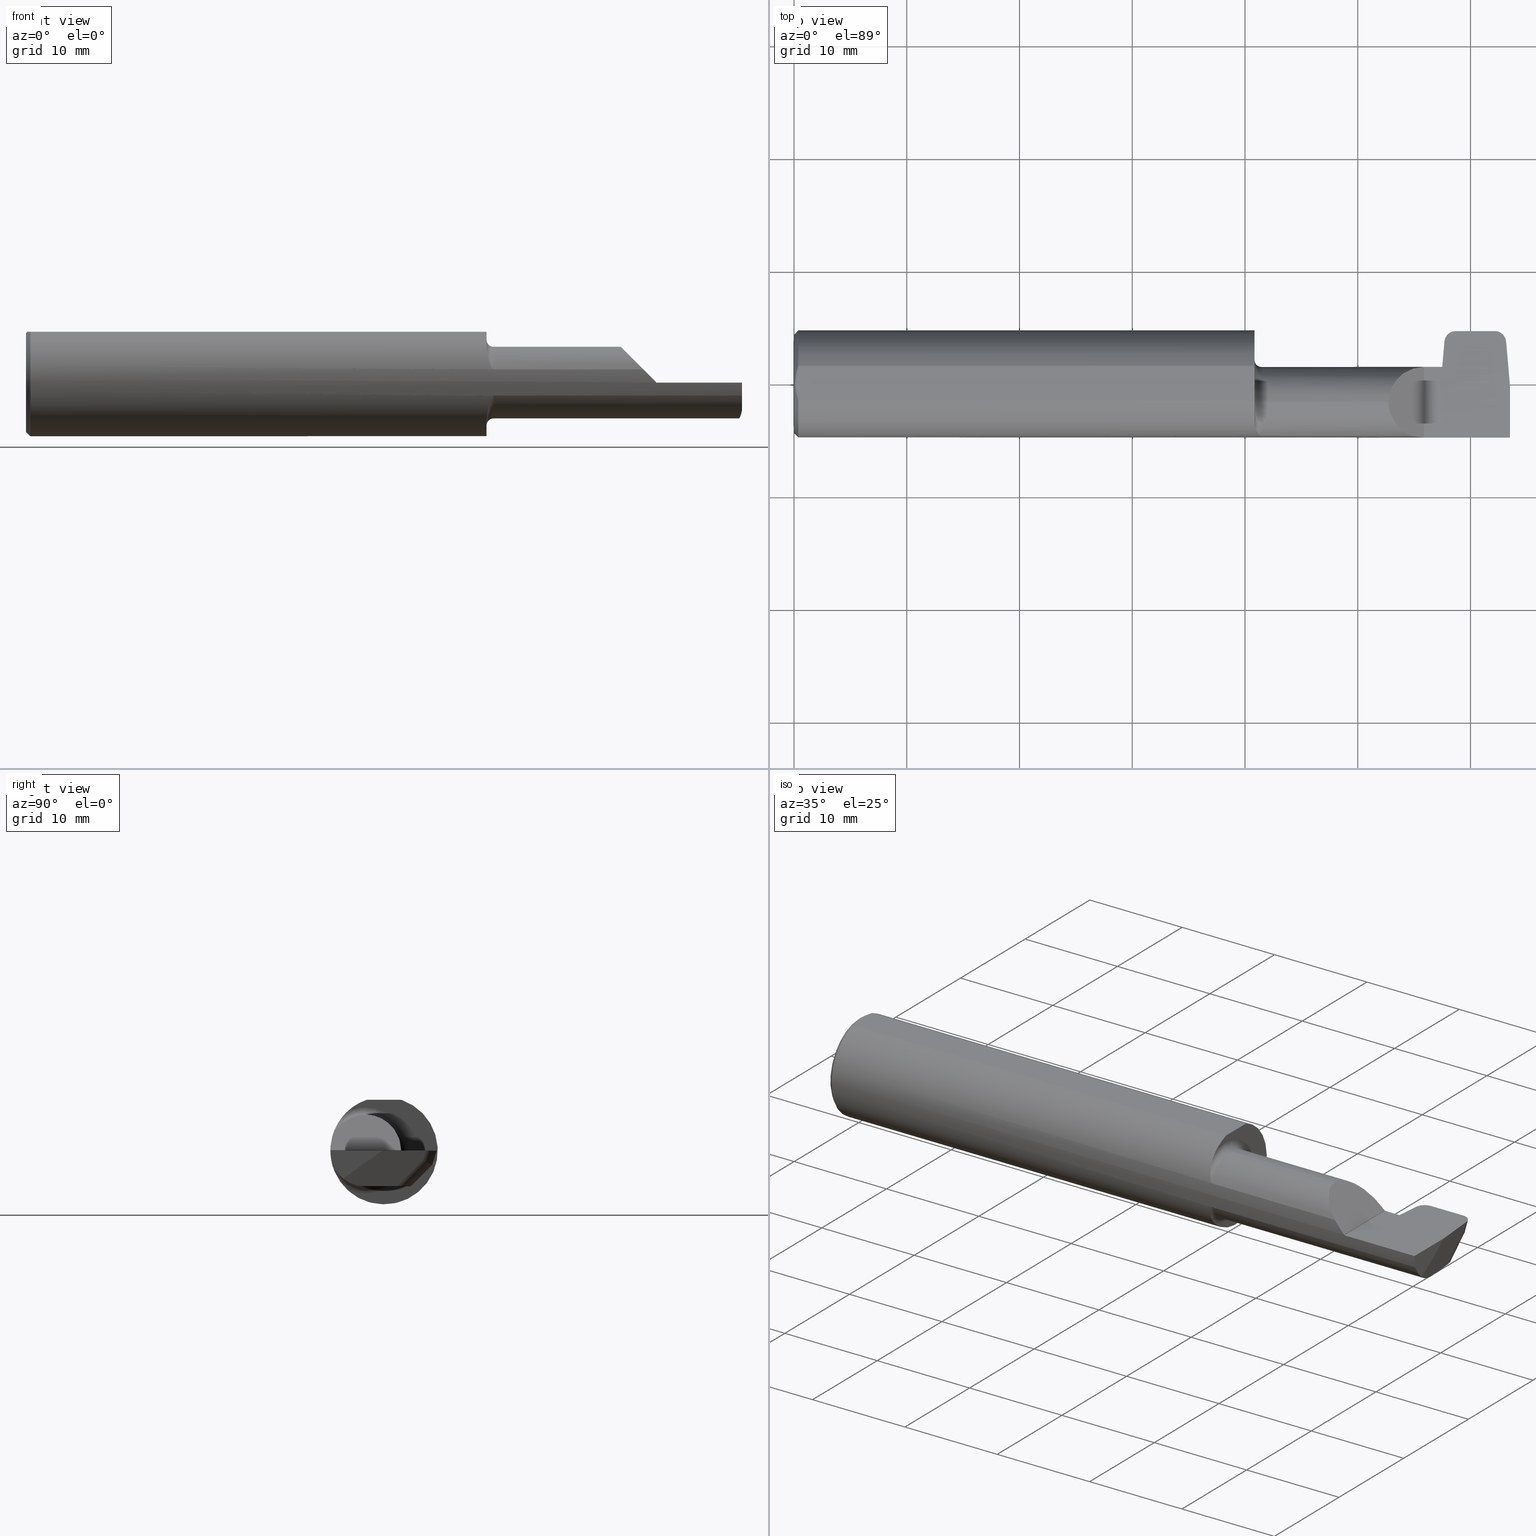
[diagram: canonical four-view strip — front | top / right | iso, engineering-drawing reading convention]
A machine part, canonical four-view strip (front | top / right | iso — engineering-drawing reading convention). The complete STEP part file that produces these views, byte-faithful:
ISO-10303-21;
HEADER;
FILE_DESCRIPTION (( 'STEP AP203' ),
    '1' );
FILE_NAME ('224831-GOR208-13.STEP',
    '2024-07-08T17:50:24',
    ( '' ),
    ( '' ),
    'SwSTEP 2.0',
    'SolidWorks 2024',
    '' );
FILE_SCHEMA (( 'CONFIG_CONTROL_DESIGN' ));
ENDSEC;

DATA;
#1 = DIRECTION ( 'NONE',  ( 0.000000000000000000, 0.000000000000000000, 1.000000000000000000 ) ) ;
#2 = ORIENTED_EDGE ( 'NONE', *, *, #647, .T. ) ;
#3 = CARTESIAN_POINT ( 'NONE',  ( 2.444115036006996977, 0.1682901254326543694, -0.05030100006430071602 ) ) ;
#4 = EDGE_CURVE ( 'NONE', #607, #44, #817, .T. ) ;
#5 = CARTESIAN_POINT ( 'NONE',  ( 1.632999999999999785, -0.06535000000000000531, -0.1249999999999999584 ) ) ;
#6 = VECTOR ( 'NONE', #218, 39.37007874015748143 ) ;
#7 = SECURITY_CLASSIFICATION ( '', '', #723 ) ;
#8 = EDGE_CURVE ( 'NONE', #804, #489, #961, .T. ) ;
#9 = DIRECTION ( 'NONE',  ( -1.000000000000000000, -0.000000000000000000, -0.000000000000000000 ) ) ;
#10 = CARTESIAN_POINT ( 'NONE',  ( 2.483423796970855690, 0.1366994779062488119, -0.03365812271429350494 ) ) ;
#11 = EDGE_CURVE ( 'NONE', #392, #280, #840, .T. ) ;
#12 = CARTESIAN_POINT ( 'NONE',  ( 2.435352285828705110, -0.07671955269581383352, -0.2953106781927749003 ) ) ;
#13 = DIRECTION ( 'NONE',  ( -1.000000000000000000, -0.000000000000000000, -0.000000000000000000 ) ) ;
#14 = DIRECTION ( 'NONE',  ( 1.000000000000000000, 0.000000000000000000, 0.000000000000000000 ) ) ;
#15 = VERTEX_POINT ( 'NONE', #669 ) ;
#16 = LINE ( 'NONE', #327, #802 ) ;
#17 = VECTOR ( 'NONE', #704, 39.37007874015748854 ) ;
#18 = DIRECTION ( 'NONE',  ( -0.7071067811865481278, 0.000000000000000000, -0.7071067811865470176 ) ) ;
#19 = VECTOR ( 'NONE', #232, 39.37007874015748143 ) ;
#20 = ORIENTED_EDGE ( 'NONE', *, *, #762, .T. ) ;
#21 = ORIENTED_EDGE ( 'NONE', *, *, #403, .F. ) ;
#22 = CARTESIAN_POINT ( 'NONE',  ( 0.000000000000000000, 2.202527268266516892E-17, 0.1723500000000004195 ) ) ;
#23 = ORIENTED_EDGE ( 'NONE', *, *, #576, .T. ) ;
#24 = PERSON_AND_ORGANIZATION ( #468, #528 ) ;
#25 = EDGE_LOOP ( 'NONE', ( #853, #332, #287, #31 ) ) ;
#26 = CARTESIAN_POINT ( 'NONE',  ( 2.441443432664611723, 0.09359112549695694505, -0.1249999999999999861 ) ) ;
#27 = CARTESIAN_POINT ( 'NONE',  ( 2.274330510889295720, 0.1366994779062488397, -0.03365812271429328983 ) ) ;
#28 = EDGE_CURVE ( 'NONE', #887, #97, #480, .T. ) ;
#29 = CARTESIAN_POINT ( 'NONE',  ( 2.263441070989336446, 0.05964999999999993918, 0.000000000000000000 ) ) ;
#30 = EDGE_CURVE ( 'NONE', #373, #717, #626, .T. ) ;
#31 = ORIENTED_EDGE ( 'NONE', *, *, #943, .T. ) ;
#32 = CARTESIAN_POINT ( 'NONE',  ( 1.632999999999999785, -0.06535000000000000531, 0.1499999999999999667 ) ) ;
#33 = AXIS2_PLACEMENT_3D ( 'NONE', #827, #360, #440 ) ;
#34 = VECTOR ( 'NONE', #320, 39.37007874015748143 ) ;
#35 = CARTESIAN_POINT ( 'NONE',  ( 2.200000000000000178, 0.000000000000000000, 0.000000000000000000 ) ) ;
#36 = APPLICATION_PROTOCOL_DEFINITION ( 'international standard', 'config_control_design', 1994, #993 ) ;
#37 = AXIS2_PLACEMENT_3D ( 'NONE', #32, #747, #517 ) ;
#38 = CARTESIAN_POINT ( 'NONE',  ( 2.314747345654483812, 0.1683139580139821345, -0.05027716748297298560 ) ) ;
#39 = EDGE_LOOP ( 'NONE', ( #182, #190, #268, #20, #200, #782 ) ) ;
#40 = DIRECTION ( 'NONE',  ( 0.000000000000000000, -0.1218693434051476288, -0.9925461516413219831 ) ) ;
#41 = ORIENTED_EDGE ( 'NONE', *, *, #296, .F. ) ;
#42 = DATE_AND_TIME ( #285, #930 ) ;
#43 = CARTESIAN_POINT ( 'NONE',  ( 2.489919779257633081, -0.06623190504079595753, -0.1249999999999999861 ) ) ;
#44 = VERTEX_POINT ( 'NONE', #204 ) ;
#45 = DIRECTION ( 'NONE',  ( -0.000000000000000000, 0.000000000000000000, -1.000000000000000000 ) ) ;
#46 = ORIENTED_EDGE ( 'NONE', *, *, #864, .T. ) ;
#47 = CARTESIAN_POINT ( 'NONE',  ( 2.318466861177846283, 0.1555692064574643318, -0.08950147953385804989 ) ) ;
#48 = VERTEX_POINT ( 'NONE', #421 ) ;
#49 = FACE_OUTER_BOUND ( 'NONE', #276, .T. ) ;
#50 = B_SPLINE_CURVE_WITH_KNOTS ( 'NONE', 3,
 ( #542, #522, #834, #447 ),
 .UNSPECIFIED., .F., .F.,
 ( 4, 4 ),
 ( 0.003992862456818214133, 0.005540749947065446226 ),
 .UNSPECIFIED. ) ;
#51 = ORIENTED_EDGE ( 'NONE', *, *, #424, .F. ) ;
#52 = MANIFOLD_SOLID_BREP ( 'Fillet1', #639 ) ;
#53 = CC_DESIGN_SECURITY_CLASSIFICATION ( #7, ( #265 ) ) ;
#54 = CARTESIAN_POINT ( 'NONE',  ( 2.277504986094757822, -0.06535000000000003306, -0.1249999999999999861 ) ) ;
#55 = EDGE_LOOP ( 'NONE', ( #450, #828, #209, #455, #640, #497, #561 ) ) ;
#56 = CYLINDRICAL_SURFACE ( 'NONE', #543, 0.04000000000000000777 ) ;
#57 = CARTESIAN_POINT ( 'NONE',  ( 2.447774584507903306, 0.1846500000000000086, -3.979970649922726459E-17 ) ) ;
#58 = CARTESIAN_POINT ( 'NONE',  ( 2.155609336774261919, -0.1816805279265492068, 0.04574066322573761001 ) ) ;
#59 = ORIENTED_EDGE ( 'NONE', *, *, #939, .F. ) ;
#60 = DIRECTION ( 'NONE',  ( -0.02528153024484489780, -0.7068807693764397326, -0.7068807693764569411 ) ) ;
#61 =( BOUNDED_CURVE ( )  B_SPLINE_CURVE ( 3, ( #179, #89, #714, #10 ),
 .UNSPECIFIED., .F., .F. ) 
 B_SPLINE_CURVE_WITH_KNOTS ( ( 4, 4 ),
 ( 0.1478821064332875579, 1.570796326794895226 ),
 .UNSPECIFIED. ) 
 CURVE ( )  GEOMETRIC_REPRESENTATION_ITEM ( )  RATIONAL_B_SPLINE_CURVE ( ( 1.000000000000000000, 0.8382741850914512405, 0.8382741850914512405, 1.000000000000000000 ) ) 
 REPRESENTATION_ITEM ( '' )  );
#62 = DIRECTION ( 'NONE',  ( 0.000000000000000000, -1.000000000000000000, 0.000000000000000000 ) ) ;
#63 = CARTESIAN_POINT ( 'NONE',  ( 1.617242766001949938, -0.1712683263405276046, -0.07645797409013629919 ) ) ;
#64 = ORIENTED_EDGE ( 'NONE', *, *, #968, .T. ) ;
#65 = EDGE_CURVE ( 'NONE', #48, #905, #700, .T. ) ;
#66 = DIRECTION ( 'NONE',  ( 0.000000000000000000, 0.000000000000000000, -1.000000000000000000 ) ) ;
#67 = CARTESIAN_POINT ( 'NONE',  ( 2.262441070989336112, 0.05964999999999992530, 0.000000000000000000 ) ) ;
#68 = VECTOR ( 'NONE', #358, 39.37007874015748854 ) ;
#69 = PRODUCT_RELATED_PRODUCT_CATEGORY ( 'detail', '', ( #832 ) ) ;
#70 = ORIENTED_EDGE ( 'NONE', *, *, #787, .T. ) ;
#71 = AXIS2_PLACEMENT_3D ( 'NONE', #168, #476, #789 ) ;
#72 = DIRECTION ( 'NONE',  ( 1.000000000000000000, 0.000000000000000000, 0.000000000000000000 ) ) ;
#73 = CARTESIAN_POINT ( 'NONE',  ( 2.264636287857272112, 0.06184521686793587741, 0.01787860665700354706 ) ) ;
#74 = CARTESIAN_POINT ( 'NONE',  ( 1.625471878265903669, -0.1794901087543955276, -0.05373940346778428856 ) ) ;
#75 = ORIENTED_EDGE ( 'NONE', *, *, #478, .F. ) ;
#76 = CC_DESIGN_DATE_AND_TIME_ASSIGNMENT ( #570, #106, ( #7 ) ) ;
#77 = CARTESIAN_POINT ( 'NONE',  ( 0.01499999999999970281, 0.000000000000000000, 0.000000000000000000 ) ) ;
#78 = DIRECTION ( 'NONE',  ( 0.000000000000000000, 0.000000000000000000, -1.000000000000000000 ) ) ;
#79 = EDGE_CURVE ( 'NONE', #342, #532, #719, .T. ) ;
#80 = ORIENTED_EDGE ( 'NONE', *, *, #323, .F. ) ;
#81 = CARTESIAN_POINT ( 'NONE',  ( 2.023999999999999577, 0.1000000000000000056, 0.1773499999999999799 ) ) ;
#82 = AXIS2_PLACEMENT_3D ( 'NONE', #341, #655, #825 ) ;
#83 = EDGE_CURVE ( 'NONE', #93, #713, #889, .T. ) ;
#84 = CARTESIAN_POINT ( 'NONE',  ( 2.447774584507903306, 0.1846500000000000086, -3.979970649922726459E-17 ) ) ;
#85 = LINE ( 'NONE', #121, #283 ) ;
#86 = PLANE ( 'NONE',  #96 ) ;
#87 = ORIENTED_EDGE ( 'NONE', *, *, #523, .T. ) ;
#88 =( BOUNDED_CURVE ( )  B_SPLINE_CURVE ( 3, ( #729, #211, #983, #127 ),
 .UNSPECIFIED., .F., .F. ) 
 B_SPLINE_CURVE_WITH_KNOTS ( ( 4, 4 ),
 ( 6.013479987146139294, 7.464055041535657686 ),
 .UNSPECIFIED. ) 
 CURVE ( )  GEOMETRIC_REPRESENTATION_ITEM ( )  RATIONAL_B_SPLINE_CURVE ( ( 1.000000000000000000, 0.8322058143701920319, 0.8322058143701920319, 1.000000000000000000 ) ) 
 REPRESENTATION_ITEM ( '' )  );
#89 = CARTESIAN_POINT ( 'NONE',  ( 2.464860544483543858, 0.1673953732353457846, -0.05119575226160933551 ) ) ;
#90 = PLANE ( 'NONE',  #675 ) ;
#91 = ORIENTED_EDGE ( 'NONE', *, *, #194, .T. ) ;
#92 = CARTESIAN_POINT ( 'NONE',  ( 2.280139226226501226, 0.07441143237099380470, -0.1250000000000000000 ) ) ;
#93 = VERTEX_POINT ( 'NONE', #518 ) ;
#94 = TOROIDAL_SURFACE ( 'NONE', #510, 0.1499999999999999667, 0.02500000000000000139 ) ;
#95 = DIRECTION ( 'NONE',  ( 0.02528153024484488046, 0.7068807693764396216, 0.7068807693764568301 ) ) ;
#96 = AXIS2_PLACEMENT_3D ( 'NONE', #81, #18, #177 ) ;
#97 = VERTEX_POINT ( 'NONE', #748 ) ;
#98 = DIRECTION ( 'NONE',  ( 0.000000000000000000, 0.000000000000000000, -1.000000000000000000 ) ) ;
#99 = ORIENTED_EDGE ( 'NONE', *, *, #302, .F. ) ;
#100 = APPROVAL ( #416, 'UNSPECIFIED' ) ;
#101 = CARTESIAN_POINT ( 'NONE',  ( 2.262441070989336112, 0.05964999999999992530, 0.000000000000000000 ) ) ;
#102 = EDGE_CURVE ( 'NONE', #207, #642, #823, .T. ) ;
#103 = ORIENTED_EDGE ( 'NONE', *, *, #768, .T. ) ;
#104 = ADVANCED_FACE ( 'NONE', ( #727 ), #339, .F. ) ;
#105 = EDGE_CURVE ( 'NONE', #314, #586, #1003, .T. ) ;
#106 = DATE_TIME_ROLE ( 'classification_date' ) ;
#107 = CARTESIAN_POINT ( 'NONE',  ( 0.01499999999999970281, 0.000000000000000000, 0.000000000000000000 ) ) ;
#108 = ORIENTED_EDGE ( 'NONE', *, *, #864, .F. ) ;
#109 = ADVANCED_FACE ( 'NONE', ( #382 ), #529, .F. ) ;
#110 = DIRECTION ( 'NONE',  ( 1.000000000000000000, -0.000000000000000000, -0.000000000000000000 ) ) ;
#111 = VERTEX_POINT ( 'NONE', #3 ) ;
#112 = APPROVAL_ROLE ( '' ) ;
#113 = CARTESIAN_POINT ( 'NONE',  ( 2.258728036773836045, 0.05593696578449940809, -0.03024023694995878198 ) ) ;
#114 = VERTEX_POINT ( 'NONE', #221 ) ;
#115 = EDGE_CURVE ( 'NONE', #683, #114, #308, .T. ) ;
#116 = CARTESIAN_POINT ( 'NONE',  ( 2.277504986094757822, 0.05593696578449948442, -0.03024023694995846973 ) ) ;
#117 = AXIS2_PLACEMENT_3D ( 'NONE', #901, #110, #811 ) ;
#118 = AXIS2_PLACEMENT_3D ( 'NONE', #388, #848, #161 ) ;
#119 = CARTESIAN_POINT ( 'NONE',  ( 2.263441070989336446, 0.05964999999999993918, 0.000000000000000000 ) ) ;
#120 = VECTOR ( 'NONE', #622, 39.37007874015748143 ) ;
#121 = CARTESIAN_POINT ( 'NONE',  ( 2.500000000000000000, 0.06039039658753697637, 0.1773499999999999799 ) ) ;
#122 = CARTESIAN_POINT ( 'NONE',  ( 2.273508995422715007, 0.1395143634620823192, -0.02499479578007184066 ) ) ;
#123 = ORIENTED_EDGE ( 'NONE', *, *, #181, .F. ) ;
#124 = PLANE ( 'NONE',  #981 ) ;
#125 = DIRECTION ( 'NONE',  ( 0.000000000000000000, 0.000000000000000000, -1.000000000000000000 ) ) ;
#126 = COORDINATED_UNIVERSAL_TIME_OFFSET ( 8, 0, .BEHIND. ) ;
#127 = CARTESIAN_POINT ( 'NONE',  ( 2.271138819222131566, 0.1476356649143464872, 0.000000000000000000 ) ) ;
#128 = VERTEX_POINT ( 'NONE', #618 ) ;
#129 =( BOUNDED_CURVE ( )  B_SPLINE_CURVE ( 3, ( #237, #215, #759, #58 ),
 .UNSPECIFIED., .F., .T. ) 
 B_SPLINE_CURVE_WITH_KNOTS ( ( 4, 4 ),
 ( 4.719594807355369959, 4.959027430676237636 ),
 .UNSPECIFIED. ) 
 CURVE ( )  GEOMETRIC_REPRESENTATION_ITEM ( )  RATIONAL_B_SPLINE_CURVE ( ( 1.000000000000000000, 0.9952283712403751093, 0.9952283712403751093, 1.000000000000000000 ) ) 
 REPRESENTATION_ITEM ( '' )  );
#130 = CARTESIAN_POINT ( 'NONE',  ( 2.259944011631511707, 0.05840614090344290604, -0.02033691646133923767 ) ) ;
#131 = ORIENTED_EDGE ( 'NONE', *, *, #768, .F. ) ;
#132 = CARTESIAN_POINT ( 'NONE',  ( 2.444115036006996977, 0.1682901254326543694, -0.05030100006430071602 ) ) ;
#133 = PRODUCT_DEFINITION_SHAPE ( 'NONE', 'NONE',  #154 ) ;
#134 = ORIENTED_EDGE ( 'NONE', *, *, #164, .F. ) ;
#135 = CARTESIAN_POINT ( 'NONE',  ( 1.632999999999999785, -0.06535000000000003306, 0.000000000000000000 ) ) ;
#136 = CARTESIAN_POINT ( 'NONE',  ( 1.607999999999999874, 0.1000000000000000056, 0.1773499999999999799 ) ) ;
#137 = CARTESIAN_POINT ( 'NONE',  ( 1.631817590302756749, -0.1816805279265500950, -0.04574066322574452809 ) ) ;
#138 = VECTOR ( 'NONE', #584, 39.37007874015748143 ) ;
#139 = ORIENTED_EDGE ( 'NONE', *, *, #523, .F. ) ;
#140 = DIRECTION ( 'NONE',  ( 0.000000000000000000, -0.7071067811865389130, -0.7071067811865561215 ) ) ;
#141 = EDGE_CURVE ( 'NONE', #967, #767, #694, .T. ) ;
#142 = DIRECTION ( 'NONE',  ( 1.000000000000000000, 0.000000000000000000, 0.000000000000000000 ) ) ;
#143 = CALENDAR_DATE ( 2024, 8, 7 ) ;
#144 = EDGE_CURVE ( 'NONE', #336, #214, #546, .T. ) ;
#145 = ADVANCED_FACE ( 'NONE', ( #687 ), #926, .T. ) ;
#146 = CARTESIAN_POINT ( 'NONE',  ( 1.608000000000000096, -0.1358364408402822077, -0.1293653927267006953 ) ) ;
#147 = ORIENTED_EDGE ( 'NONE', *, *, #369, .F. ) ;
#148 = CARTESIAN_POINT ( 'NONE',  ( 2.277504986094757822, -0.06535000000000003306, 0.000000000000000000 ) ) ;
#149 = DIRECTION ( 'NONE',  ( 0.000000000000000000, 0.000000000000000000, -1.000000000000000000 ) ) ;
#150 = CARTESIAN_POINT ( 'NONE',  ( 0.000000000000000000, 0.000000000000000000, 0.000000000000000000 ) ) ;
#151 = ORIENTED_EDGE ( 'NONE', *, *, #260, .T. ) ;
#152 = FACE_OUTER_BOUND ( 'NONE', #563, .T. ) ;
#153 = CARTESIAN_POINT ( 'NONE',  ( 2.500000000000000000, -0.1431654907182394187, -0.09782509598400397632 ) ) ;
#154 = PRODUCT_DEFINITION ( 'UNKNOWN', '', #265, #556 ) ;
#155 = AXIS2_PLACEMENT_3D ( 'NONE', #634, #946, #251 ) ;
#156 = CARTESIAN_POINT ( 'NONE',  ( 2.477615081633650185, 0.07441143237099386021, -0.1249999999999999445 ) ) ;
#157 = EDGE_LOOP ( 'NONE', ( #51, #41, #565, #741 ) ) ;
#158 = LOCAL_TIME ( 10, 50, 24.00000000000000000, #670 ) ;
#159 = AXIS2_PLACEMENT_3D ( 'NONE', #596, #441, #125 ) ;
#160 = CARTESIAN_POINT ( 'NONE',  ( 2.500000000000000000, -0.06535000000000003306, -0.1249999999999999861 ) ) ;
#161 = DIRECTION ( 'NONE',  ( 0.000000000000000000, 0.000000000000000000, 1.000000000000000000 ) ) ;
#162 = ORIENTED_EDGE ( 'NONE', *, *, #141, .F. ) ;
#163 = CARTESIAN_POINT ( 'NONE',  ( 2.200000000000000178, 0.05964999999999993918, -3.979970649922726459E-17 ) ) ;
#164 = EDGE_CURVE ( 'NONE', #951, #278, #346, .T. ) ;
#165 = DIRECTION ( 'NONE',  ( 1.000000000000000000, 0.000000000000000000, 0.000000000000000000 ) ) ;
#166 = CARTESIAN_POINT ( 'NONE',  ( 2.495856300306567466, -0.1208312645254836365, -0.1155909744993251775 ) ) ;
#167 = EDGE_CURVE ( 'NONE', #15, #953, #933, .T. ) ;
#168 = CARTESIAN_POINT ( 'NONE',  ( 1.632999999999999785, -0.06535000000000003306, 0.000000000000000000 ) ) ;
#169 = AXIS2_PLACEMENT_3D ( 'NONE', #277, #45, #202 ) ;
#170 = TOROIDAL_SURFACE ( 'NONE', #71, 0.1499999999999999667, 0.02500000000000000139 ) ;
#171 = VECTOR ( 'NONE', #884, 39.37007874015748143 ) ;
#172 = LINE ( 'NONE', #488, #318 ) ;
#173 = CARTESIAN_POINT ( 'NONE',  ( 1.610356402887169525, -0.1533523090637235464, 0.1080176704948173638 ) ) ;
#174 = VERTEX_POINT ( 'NONE', #997 ) ;
#175 = CARTESIAN_POINT ( 'NONE',  ( 2.500000000000000000, -0.1431654907182394187, -0.09782509598400397632 ) ) ;
#176 = ORIENTED_EDGE ( 'NONE', *, *, #219, .F. ) ;
#177 = DIRECTION ( 'NONE',  ( -0.7071067811865469066, 0.000000000000000000, 0.7071067811865480168 ) ) ;
#178 = ORIENTED_EDGE ( 'NONE', *, *, #580, .T. ) ;
#179 = CARTESIAN_POINT ( 'NONE',  ( 2.444115036006996977, 0.1682901254326543694, -0.05030100006430071602 ) ) ;
#180 = CC_DESIGN_PERSON_AND_ORGANIZATION_ASSIGNMENT ( #193, #829, ( #265 ) ) ;
#181 = EDGE_CURVE ( 'NONE', #845, #520, #899, .T. ) ;
#182 = ORIENTED_EDGE ( 'NONE', *, *, #651, .F. ) ;
#183 = AXIS2_PLACEMENT_3D ( 'NONE', #805, #345, #726 ) ;
#184 = CIRCLE ( 'NONE', #427, 0.1499999999999999667 ) ;
#185 = CYLINDRICAL_SURFACE ( 'NONE', #183, 0.04000000000000001471 ) ;
#186 = VECTOR ( 'NONE', #245, 39.37007874015748143 ) ;
#187 = EDGE_LOOP ( 'NONE', ( #925, #779, #509, #957, #433, #752, #730, #722, #624, #794 ) ) ;
#188 = MECHANICAL_CONTEXT ( 'NONE', #993, 'mechanical' ) ;
#189 = DIRECTION ( 'NONE',  ( -0.000000000000000000, 1.000000000000000000, -0.000000000000000000 ) ) ;
#190 = ORIENTED_EDGE ( 'NONE', *, *, #393, .T. ) ;
#191 = DIRECTION ( 'NONE',  ( 0.02528153024484596292, -0.7068807693764396216, -0.7068807693764568301 ) ) ;
#192 = CARTESIAN_POINT ( 'NONE',  ( 2.500000000000000000, 0.09359112549695694505, -0.1249999999999999861 ) ) ;
#193 = PERSON_AND_ORGANIZATION ( #468, #528 ) ;
#194 = EDGE_CURVE ( 'NONE', #977, #48, #50, .T. ) ;
#195 = CARTESIAN_POINT ( 'NONE',  ( 2.253128570000001218, 0.1537483005625063237, -0.09510565162951598039 ) ) ;
#196 = ORIENTED_EDGE ( 'NONE', *, *, #628, .T. ) ;
#197 = CARTESIAN_POINT ( 'NONE',  ( 2.266843439991192533, 0.05593696578449948442, -0.03024023694995846973 ) ) ;
#198 = ORIENTED_EDGE ( 'NONE', *, *, #398, .F. ) ;
#199 = CARTESIAN_POINT ( 'NONE',  ( 2.200000000000000178, -0.1873451360457484560, 0.001349999999999087824 ) ) ;
#200 = ORIENTED_EDGE ( 'NONE', *, *, #167, .T. ) ;
#201 =( BOUNDED_CURVE ( )  B_SPLINE_CURVE ( 3, ( #349, #417, #892, #38 ),
 .UNSPECIFIED., .F., .T. ) 
 B_SPLINE_CURVE_WITH_KNOTS ( ( 4, 4 ),
 ( 0.01807338777464869220, 0.04573422180256402764 ),
 .UNSPECIFIED. ) 
 CURVE ( )  GEOMETRIC_REPRESENTATION_ITEM ( )  RATIONAL_B_SPLINE_CURVE ( ( 1.000000000000000000, 0.9999362408714058681, 0.9999362408714058681, 1.000000000000000000 ) ) 
 REPRESENTATION_ITEM ( '' )  );
#202 = DIRECTION ( 'NONE',  ( -1.000000000000000000, 0.000000000000000000, 0.000000000000000000 ) ) ;
#203 = AXIS2_PLACEMENT_3D ( 'NONE', #107, #965, #270 ) ;
#204 = CARTESIAN_POINT ( 'NONE',  ( 2.271138819222131566, 0.1476356649143464872, 0.000000000000000000 ) ) ;
#205 = LENGTH_MEASURE_WITH_UNIT ( LENGTH_MEASURE( 0.02539999999999999897 ), #661 );
#206 = PLANE ( 'NONE',  #854 ) ;
#207 = VERTEX_POINT ( 'NONE', #57 ) ;
#208 = CARTESIAN_POINT ( 'NONE',  ( 2.200000000000000178, 0.2000000000000000111, -3.979970649922726459E-17 ) ) ;
#209 = ORIENTED_EDGE ( 'NONE', *, *, #651, .T. ) ;
#210 =( NAMED_UNIT ( * ) SI_UNIT ( $, .STERADIAN. ) SOLID_ANGLE_UNIT ( ) );
#211 = CARTESIAN_POINT ( 'NONE',  ( 2.288637476239534951, 0.1846499999999999808, -3.414809992080329023E-17 ) ) ;
#212 = EDGE_LOOP ( 'NONE', ( #2, #425, #162, #601, #705, #720 ) ) ;
#213 = DIRECTION ( 'NONE',  ( 0.1218693434051477398, 0.000000000000000000, 0.9925461516413219831 ) ) ;
#214 = VERTEX_POINT ( 'NONE', #613 ) ;
#215 = CARTESIAN_POINT ( 'NONE',  ( 2.185011993843769318, -0.1872371331974334585, 0.01633800615622983676 ) ) ;
#216 = ORIENTED_EDGE ( 'NONE', *, *, #684, .T. ) ;
#217 = ADVANCED_FACE ( 'NONE', ( #756 ), #466, .T. ) ;
#218 = DIRECTION ( 'NONE',  ( 0.7071067811865507924, 8.659560562354895880E-17, 0.7071067811865443531 ) ) ;
#219 = EDGE_CURVE ( 'NONE', #418, #683, #911, .T. ) ;
#220 = ADVANCED_FACE ( 'NONE', ( #235 ), #693, .T. ) ;
#221 = CARTESIAN_POINT ( 'NONE',  ( 2.262441070989336112, 0.05964999999999992530, 0.000000000000000000 ) ) ;
#222 = VECTOR ( 'NONE', #781, 39.37007874015748854 ) ;
#223 = AXIS2_PLACEMENT_3D ( 'NONE', #777, #376, #703 ) ;
#224 = CARTESIAN_POINT ( 'NONE',  ( 1.615157939458078395, -0.1674139084628467611, -0.08459198811596614631 ) ) ;
#225 = VECTOR ( 'NONE', #299, 39.37007874015748143 ) ;
#226 = ORIENTED_EDGE ( 'NONE', *, *, #294, .T. ) ;
#227 = DIRECTION ( 'NONE',  ( 1.000000000000000000, -0.000000000000000000, -0.000000000000000000 ) ) ;
#228 = CARTESIAN_POINT ( 'NONE',  ( 2.500000000000000000, -0.001792473208543269182, 0.002525227012044893408 ) ) ;
#229 = FACE_OUTER_BOUND ( 'NONE', #621, .T. ) ;
#230 = ORIENTED_EDGE ( 'NONE', *, *, #936, .F. ) ;
#231 = FACE_OUTER_BOUND ( 'NONE', #987, .T. ) ;
#232 = DIRECTION ( 'NONE',  ( 1.000000000000000000, 8.537024980200214395E-15, 0.000000000000000000 ) ) ;
#233 = LINE ( 'NONE', #927, #222 ) ;
#234 = ORIENTED_EDGE ( 'NONE', *, *, #688, .F. ) ;
#235 = FACE_OUTER_BOUND ( 'NONE', #799, .T. ) ;
#236 = VECTOR ( 'NONE', #496, 39.37007874015748854 ) ;
#237 = CARTESIAN_POINT ( 'NONE',  ( 2.200000000000000178, -0.1873451360457484560, 0.001349999999999087824 ) ) ;
#238 = ORIENTED_EDGE ( 'NONE', *, *, #246, .T. ) ;
#239 = AXIS2_PLACEMENT_3D ( 'NONE', #803, #643, #98 ) ;
#240 = DIRECTION ( 'NONE',  ( 1.000000000000000000, 0.000000000000000000, 0.000000000000000000 ) ) ;
#241 = CARTESIAN_POINT ( 'NONE',  ( 1.631803717416865807, -0.1816805279265493456, 0.04574066322573741572 ) ) ;
#242 = CARTESIAN_POINT ( 'NONE',  ( 2.500000000000000000, -0.1873499999999999610, -3.979970649922724610E-17 ) ) ;
#243 = CARTESIAN_POINT ( 'NONE',  ( 2.437258410432335154, 0.1486168056024023965, -0.1108987691893262434 ) ) ;
#244 = ORIENTED_EDGE ( 'NONE', *, *, #553, .F. ) ;
#245 = DIRECTION ( 'NONE',  ( -1.000000000000000000, -0.000000000000000000, -0.000000000000000000 ) ) ;
#246 = EDGE_CURVE ( 'NONE', #114, #607, #457, .T. ) ;
#247 = EDGE_CURVE ( 'NONE', #953, #352, #1002, .T. ) ;
#248 = CARTESIAN_POINT ( 'NONE',  ( 1.626447111503740217, -0.1800702390342965031, 0.05175562241491477034 ) ) ;
#249 = VECTOR ( 'NONE', #191, 39.37007874015748854 ) ;
#250 = AXIS2_PLACEMENT_3D ( 'NONE', #295, #605, #780 ) ;
#251 = DIRECTION ( 'NONE',  ( 0.000000000000000000, 0.000000000000000000, -1.000000000000000000 ) ) ;
#252 = ORIENTED_EDGE ( 'NONE', *, *, #936, .T. ) ;
#253 = DIRECTION ( 'NONE',  ( -0.08982109674372404373, -0.3077679217474508788, -0.9472122660328092802 ) ) ;
#254 = ORIENTED_EDGE ( 'NONE', *, *, #499, .F. ) ;
#255 = CC_DESIGN_PERSON_AND_ORGANIZATION_ASSIGNMENT ( #903, #648, ( #265 ) ) ;
#256 = VERTEX_POINT ( 'NONE', #851 ) ;
#257 = CARTESIAN_POINT ( 'NONE',  ( 1.607999999999999874, -0.06535000000000003306, 0.1249999999999999584 ) ) ;
#258 = ORIENTED_EDGE ( 'NONE', *, *, #659, .F. ) ;
#259 = DIRECTION ( 'NONE',  ( 0.000000000000000000, 0.000000000000000000, -1.000000000000000000 ) ) ;
#260 = EDGE_CURVE ( 'NONE', #690, #951, #645, .T. ) ;
#261 = EDGE_LOOP ( 'NONE', ( #921, #504 ) ) ;
#262 = COORDINATED_UNIVERSAL_TIME_OFFSET ( 8, 0, .BEHIND. ) ;
#263 = ORIENTED_EDGE ( 'NONE', *, *, #791, .T. ) ;
#264 = CIRCLE ( 'NONE', #117, 0.1250000000000000000 ) ;
#265 = PRODUCT_DEFINITION_FORMATION_WITH_SPECIFIED_SOURCE ( 'ANY', '', #832, .NOT_KNOWN. ) ;
#266 = LINE ( 'NONE', #577, #249 ) ;
#267 = ADVANCED_FACE ( 'NONE', ( #564 ), #319, .F. ) ;
#268 = ORIENTED_EDGE ( 'NONE', *, *, #935, .T. ) ;
#269 = PERSON_AND_ORGANIZATION ( #468, #528 ) ;
#270 = DIRECTION ( 'NONE',  ( 0.000000000000000000, 0.000000000000000000, -1.000000000000000000 ) ) ;
#271 = EDGE_LOOP ( 'NONE', ( #75, #46, #616, #871 ) ) ;
#272 = DIRECTION ( 'NONE',  ( 0.000000000000000000, -1.000000000000000000, 0.000000000000000000 ) ) ;
#273 = VERTEX_POINT ( 'NONE', #783 ) ;
#274 = DIRECTION ( 'NONE',  ( 0.000000000000000000, 0.000000000000000000, 1.000000000000000000 ) ) ;
#275 = DIRECTION ( 'NONE',  ( 0.000000000000000000, 0.000000000000000000, -1.000000000000000000 ) ) ;
#276 = EDGE_LOOP ( 'NONE', ( #368, #900, #365, #724 ) ) ;
#277 = CARTESIAN_POINT ( 'NONE',  ( 2.200000000000000178, 0.2000000000000000111, -3.979970649922726459E-17 ) ) ;
#278 = VERTEX_POINT ( 'NONE', #472 ) ;
#279 = LINE ( 'NONE', #43, #236 ) ;
#280 = VERTEX_POINT ( 'NONE', #22 ) ;
#281 = DIRECTION ( 'NONE',  ( -0.000000000000000000, 1.000000000000000000, -0.000000000000000000 ) ) ;
#282 = APPROVAL ( #695, 'UNSPECIFIED' ) ;
#283 = VECTOR ( 'NONE', #980, 39.37007874015748143 ) ;
#284 = CARTESIAN_POINT ( 'NONE',  ( 0.008696589530555638714, -0.04083523520126732670, 0.1773499999999999799 ) ) ;
#285 = CALENDAR_DATE ( 2024, 8, 7 ) ;
#286 = CARTESIAN_POINT ( 'NONE',  ( 2.314747345654483812, 0.1683139580139821345, -0.05027716748297298560 ) ) ;
#287 = ORIENTED_EDGE ( 'NONE', *, *, #102, .F. ) ;
#288 = CARTESIAN_POINT ( 'NONE',  ( 2.318466861177846283, 0.1175269458056580479, -0.07714079975886062313 ) ) ;
#289 = CARTESIAN_POINT ( 'NONE',  ( 0.004999999999999610659, -0.02074845265125289245, 0.1773499999999999799 ) ) ;
#290 = COORDINATED_UNIVERSAL_TIME_OFFSET ( 8, 0, .BEHIND. ) ;
#291 = EDGE_CURVE ( 'NONE', #845, #373, #800, .T. ) ;
#292 = DIRECTION ( 'NONE',  ( -1.000000000000000000, -0.000000000000000000, -0.000000000000000000 ) ) ;
#293 = ORIENTED_EDGE ( 'NONE', *, *, #8, .F. ) ;
#294 = EDGE_CURVE ( 'NONE', #111, #489, #715, .T. ) ;
#295 = CARTESIAN_POINT ( 'NONE',  ( 2.500000000000000000, 0.000000000000000000, 0.000000000000000000 ) ) ;
#296 = EDGE_CURVE ( 'NONE', #951, #342, #544, .T. ) ;
#297 = CARTESIAN_POINT ( 'NONE',  ( 2.500000000000000000, -0.06039039658753697637, 0.1773499999999999799 ) ) ;
#298 = ORIENTED_EDGE ( 'NONE', *, *, #28, .T. ) ;
#299 = DIRECTION ( 'NONE',  ( 0.7071067811865507924, 0.000000000000000000, -0.7071067811865443531 ) ) ;
#300 = CARTESIAN_POINT ( 'NONE',  ( 2.500000000000000000, 0.000000000000000000, 0.000000000000000000 ) ) ;
#301 = CIRCLE ( 'NONE', #635, 0.1249999999999999584 ) ;
#302 = EDGE_CURVE ( 'NONE', #821, #418, #481, .T. ) ;
#303 = LOCAL_TIME ( 10, 50, 24.00000000000000000, #290 ) ;
#304 = AXIS2_PLACEMENT_3D ( 'NONE', #300, #534, #311 ) ;
#305 = DIRECTION ( 'NONE',  ( -1.000000000000000000, 0.000000000000000000, 0.000000000000000000 ) ) ;
#306 = ORIENTED_EDGE ( 'NONE', *, *, #787, .F. ) ;
#307 = DIRECTION ( 'NONE',  ( 0.000000000000000000, -0.9510565162951573059, 0.3090169943749362935 ) ) ;
#308 = LINE ( 'NONE', #73, #559 ) ;
#309 = CARTESIAN_POINT ( 'NONE',  ( 2.316310875195540131, 0.09359112549695693117, -0.1249999999999999861 ) ) ;
#310 = VERTEX_POINT ( 'NONE', #333 ) ;
#311 = DIRECTION ( 'NONE',  ( 0.000000000000000000, 0.000000000000000000, -1.000000000000000000 ) ) ;
#312 = LINE ( 'NONE', #540, #17 ) ;
#313 = VERTEX_POINT ( 'NONE', #163 ) ;
#314 = VERTEX_POINT ( 'NONE', #861 ) ;
#315 = DIRECTION ( 'NONE',  ( 0.08715574274765033880, 0.9961946980917462113, -0.000000000000000000 ) ) ;
#316 = AXIS2_PLACEMENT_3D ( 'NONE', #763, #775, #140 ) ;
#317 = APPROVAL_PERSON_ORGANIZATION ( #812, #282, #765 ) ;
#318 = VECTOR ( 'NONE', #404, 39.37007874015748854 ) ;
#319 = PLANE ( 'NONE',  #409 ) ;
#320 = DIRECTION ( 'NONE',  ( 0.08982109674372407149, 0.3077679217474509343, 0.9472122660328092802 ) ) ;
#321 = DIMENSIONAL_EXPONENTS ( 1.000000000000000000, 0.000000000000000000, 0.000000000000000000, 0.000000000000000000, 0.000000000000000000, 0.000000000000000000, 0.000000000000000000 ) ;
#322 = ADVANCED_FACE ( 'NONE', ( #470 ), #86, .F. ) ;
#323 = EDGE_CURVE ( 'NONE', #256, #207, #760, .T. ) ;
#324 = FACE_OUTER_BOUND ( 'NONE', #261, .T. ) ;
#325 = CARTESIAN_POINT ( 'NONE',  ( 2.200000000000000178, -0.1873499999999999888, -3.979970649922726459E-17 ) ) ;
#326 = ORIENTED_EDGE ( 'NONE', *, *, #79, .T. ) ;
#327 = CARTESIAN_POINT ( 'NONE',  ( 2.263428753807165350, 0.05966344184561212655, 0.0001094750472970594621 ) ) ;
#328 = CIRCLE ( 'NONE', #897, 0.1723500000000004195 ) ;
#329 = VECTOR ( 'NONE', #992, 39.37007874015748854 ) ;
#330 = LINE ( 'NONE', #950, #716 ) ;
#331 = EDGE_LOOP ( 'NONE', ( #80, #878, #989, #837, #492 ) ) ;
#332 = ORIENTED_EDGE ( 'NONE', *, *, #731, .T. ) ;
#333 = CARTESIAN_POINT ( 'NONE',  ( 1.632999999999999785, -0.1816805279265493456, -0.04574066322573741572 ) ) ;
#334 = ORIENTED_EDGE ( 'NONE', *, *, #181, .T. ) ;
#335 = DATE_TIME_ROLE ( 'creation_date' ) ;
#336 = VERTEX_POINT ( 'NONE', #399 ) ;
#337 = ADVANCED_FACE ( 'NONE', ( #324 ), #90, .F. ) ;
#338 = LINE ( 'NONE', #420, #866 ) ;
#339 = PLANE ( 'NONE',  #223 ) ;
#340 = PERSON_AND_ORGANIZATION ( #468, #528 ) ;
#341 = CARTESIAN_POINT ( 'NONE',  ( 2.437258410432335154, 0.1105745449505960987, -0.09853808941432878887 ) ) ;
#342 = VERTEX_POINT ( 'NONE', #484 ) ;
#343 = CONICAL_SURFACE ( 'NONE', #203, 0.1873499999999999888, 0.7853981633974437271 ) ;
#344 = TOROIDAL_SURFACE ( 'NONE', #239, 0.1499999999999999667, 0.02500000000000000139 ) ;
#345 = DIRECTION ( 'NONE',  ( -0.02528153024484597333, 0.7068807693764397326, 0.7068807693764569411 ) ) ;
#346 = CIRCLE ( 'NONE', #614, 0.02500000000000000486 ) ;
#347 = CIRCLE ( 'NONE', #37, 0.02500000000000000486 ) ;
#348 = CARTESIAN_POINT ( 'NONE',  ( 0.004999999999999616730, 2.171911098286967231E-17, 0.1773499999999999799 ) ) ;
#349 = CARTESIAN_POINT ( 'NONE',  ( 2.313639271853154433, 0.1682901254326543694, -0.05030100006430070214 ) ) ;
#350 = ORIENTED_EDGE ( 'NONE', *, *, #505, .T. ) ;
#351 = CARTESIAN_POINT ( 'NONE',  ( 1.632999999999999785, -0.1816805279265493456, 0.04574066322573741572 ) ) ;
#352 = VERTEX_POINT ( 'NONE', #555 ) ;
#353 = LINE ( 'NONE', #47, #68 ) ;
#354 = ORIENTED_EDGE ( 'NONE', *, *, #891, .T. ) ;
#355 = DIRECTION ( 'NONE',  ( -1.000000000000000000, -0.000000000000000000, -0.000000000000000000 ) ) ;
#356 = ORIENTED_EDGE ( 'NONE', *, *, #291, .T. ) ;
#357 = APPROVAL_DATE_TIME ( #579, #978 ) ;
#358 = DIRECTION ( 'NONE',  ( -0.08982109674372451558, 0.3077679217474508788, 0.9472122660328092802 ) ) ;
#359 = EDGE_LOOP ( 'NONE', ( #657, #702, #636, #230 ) ) ;
#360 = DIRECTION ( 'NONE',  ( 1.000000000000000000, 0.000000000000000000, 0.000000000000000000 ) ) ;
#361 = CC_DESIGN_PERSON_AND_ORGANIZATION_ASSIGNMENT ( #24, #436, ( #154 ) ) ;
#362 = APPROVAL_PERSON_ORGANIZATION ( #742, #100, #112 ) ;
#363 = VECTOR ( 'NONE', #253, 39.37007874015748854 ) ;
#364 = EDGE_CURVE ( 'NONE', #418, #607, #172, .T. ) ;
#365 = ORIENTED_EDGE ( 'NONE', *, *, #30, .F. ) ;
#366 = AXIS2_PLACEMENT_3D ( 'NONE', #549, #240, #867 ) ;
#367 = CARTESIAN_POINT ( 'NONE',  ( 0.01499999999999970281, 0.000000000000000000, 0.000000000000000000 ) ) ;
#368 = ORIENTED_EDGE ( 'NONE', *, *, #505, .F. ) ;
#369 = EDGE_CURVE ( 'NONE', #532, #214, #401, .T. ) ;
#370 = CARTESIAN_POINT ( 'NONE',  ( 2.262441070989336112, 0.05964999999999992530, 0.000000000000000000 ) ) ;
#371 = DIRECTION ( 'NONE',  ( 1.000000000000000000, 0.000000000000000000, -0.000000000000000000 ) ) ;
#372 = CARTESIAN_POINT ( 'NONE',  ( 2.462220941876951841, 0.09359112549695690342, -0.1249999999999999445 ) ) ;
#373 = VERTEX_POINT ( 'NONE', #325 ) ;
#374 = EDGE_CURVE ( 'NONE', #174, #278, #444, .T. ) ;
#375 = CARTESIAN_POINT ( 'NONE',  ( 1.607999999999999874, -0.1290791507268553850, 0.1357887894770173631 ) ) ;
#376 = DIRECTION ( 'NONE',  ( -0.000000000000000000, 0.000000000000000000, -1.000000000000000000 ) ) ;
#377 =( BOUNDED_CURVE ( )  B_SPLINE_CURVE ( 3, ( #627, #92, #934, #865 ),
 .UNSPECIFIED., .F., .F. ) 
 B_SPLINE_CURVE_WITH_KNOTS ( ( 4, 4 ),
 ( 4.885547232848825416, 6.308461453210437497 ),
 .UNSPECIFIED. ) 
 CURVE ( )  GEOMETRIC_REPRESENTATION_ITEM ( )  RATIONAL_B_SPLINE_CURVE ( ( 1.000000000000000000, 0.8382741850914501303, 0.8382741850914501303, 1.000000000000000000 ) ) 
 REPRESENTATION_ITEM ( '' )  );
#378 = DATE_AND_TIME ( #143, #303 ) ;
#379 = CARTESIAN_POINT ( 'NONE',  ( 1.628366350430950238, -0.1808668743673179924, -0.04886876118085551474 ) ) ;
#380 = EDGE_LOOP ( 'NONE', ( #995, #849, #538, #238 ) ) ;
#381 = CARTESIAN_POINT ( 'NONE',  ( 1.935500000000000220, -0.1816805279265493456, -0.04574066322573741572 ) ) ;
#382 = FACE_OUTER_BOUND ( 'NONE', #55, .T. ) ;
#383 = AXIS2_PLACEMENT_3D ( 'NONE', #740, #355, #428 ) ;
#384 = CARTESIAN_POINT ( 'NONE',  ( 2.200000000000000178, 0.05964270978741119389, 0.001349999999999188004 ) ) ;
#385 = ORIENTED_EDGE ( 'NONE', *, *, #393, .F. ) ;
#386 = DIRECTION ( 'NONE',  ( -1.000000000000000000, -0.000000000000000000, -0.000000000000000000 ) ) ;
#387 = CARTESIAN_POINT ( 'NONE',  ( 2.106227264736975080, -0.1622637096011580737, 0.09512273526302454651 ) ) ;
#388 = CARTESIAN_POINT ( 'NONE',  ( 1.607999999999999874, -0.06535000000000003306, 0.000000000000000000 ) ) ;
#389 = ORIENTED_EDGE ( 'NONE', *, *, #144, .F. ) ;
#390 = DIRECTION ( 'NONE',  ( 0.000000000000000000, 0.000000000000000000, -1.000000000000000000 ) ) ;
#391 = DIRECTION ( 'NONE',  ( 0.000000000000000000, 0.000000000000000000, -1.000000000000000000 ) ) ;
#392 = VERTEX_POINT ( 'NONE', #560 ) ;
#393 = EDGE_CURVE ( 'NONE', #128, #465, #330, .T. ) ;
#394 = CIRCLE ( 'NONE', #383, 0.1249999999999999584 ) ;
#395 = AXIS2_PLACEMENT_3D ( 'NONE', #701, #606, #856 ) ;
#396 = CARTESIAN_POINT ( 'NONE',  ( 1.629038611304518325, -0.1811041330649479364, 0.04797886786269605491 ) ) ;
#397 = EDGE_CURVE ( 'NONE', #373, #313, #583, .T. ) ;
#398 = EDGE_CURVE ( 'NONE', #644, #977, #479, .T. ) ;
#399 = CARTESIAN_POINT ( 'NONE',  ( 2.076349999999999252, -0.06535000000000003306, 0.1249999999999999584 ) ) ;
#400 = DIRECTION ( 'NONE',  ( -1.000000000000000000, -0.000000000000000000, -0.000000000000000000 ) ) ;
#401 = LINE ( 'NONE', #712, #880 ) ;
#402 = ORIENTED_EDGE ( 'NONE', *, *, #302, .T. ) ;
#403 = EDGE_CURVE ( 'NONE', #683, #114, #862, .T. ) ;
#404 = DIRECTION ( 'NONE',  ( -0.1109828012386702839, 0.1211164744642401481, 0.9864145261717159885 ) ) ;
#405 = ORIENTED_EDGE ( 'NONE', *, *, #774, .F. ) ;
#406 = CARTESIAN_POINT ( 'NONE',  ( 1.630736562170378656, -0.1815122776378730873, 0.04641090218153611641 ) ) ;
#407 = CIRCLE ( 'NONE', #474, 0.1249999999999999584 ) ;
#408 = ORIENTED_EDGE ( 'NONE', *, *, #580, .F. ) ;
#409 = AXIS2_PLACEMENT_3D ( 'NONE', #858, #410, #641 ) ;
#410 = DIRECTION ( 'NONE',  ( -0.9887692138764513361, -0.08650609705762295210, 0.1218693434051477814 ) ) ;
#411 = ORIENTED_EDGE ( 'NONE', *, *, #260, .F. ) ;
#412 = CARTESIAN_POINT ( 'NONE',  ( 1.628346106735896859, -0.1808597239496785025, 0.04889540865154969052 ) ) ;
#413 = ORIENTED_EDGE ( 'NONE', *, *, #612, .T. ) ;
#414 = DIRECTION ( 'NONE',  ( -0.000000000000000000, 0.000000000000000000, 1.000000000000000000 ) ) ;
#415 = DIRECTION ( 'NONE',  ( -1.000000000000000000, 0.000000000000000000, 0.000000000000000000 ) ) ;
#416 = APPROVAL_STATUS ( 'not_yet_approved' ) ;
#417 = CARTESIAN_POINT ( 'NONE',  ( 2.314007644427201971, 0.1683060133136590752, -0.05028511218329596855 ) ) ;
#418 = VERTEX_POINT ( 'NONE', #197 ) ;
#419 = B_SPLINE_CURVE_WITH_KNOTS ( 'NONE', 3,
 ( #920, #146, #689, #602, #464, #224, #63, #778, #682, #74, #836, #379, #696, #454, #137, #908 ),
 .UNSPECIFIED., .F., .F.,
 ( 4, 2, 2, 2, 2, 2, 2, 4 ),
 ( 0.000000000000000000, 0.0007010516798009792418, 0.001402103359601958484, 0.002103155039402938159, 0.002453680879303427997, 0.002628943799253673132, 0.002716575259228789629, 0.002804206719203906559 ),
 .UNSPECIFIED. ) ;
#420 = CARTESIAN_POINT ( 'NONE',  ( 2.200000000000000178, 0.2000000000000000111, 0.001349999999999188004 ) ) ;
#421 = CARTESIAN_POINT ( 'NONE',  ( 0.004999999999999616730, 2.171911098286967231E-17, 0.1773499999999999799 ) ) ;
#422 = EDGE_CURVE ( 'NONE', #520, #953, #264, .T. ) ;
#423 = DIRECTION ( 'NONE',  ( 0.1223279114424238173, 0.000000000000000000, -0.9924897390311572254 ) ) ;
#424 = EDGE_CURVE ( 'NONE', #342, #174, #347, .T. ) ;
#425 = ORIENTED_EDGE ( 'NONE', *, *, #501, .T. ) ;
#426 = AXIS2_PLACEMENT_3D ( 'NONE', #288, #460, #307 ) ;
#427 = AXIS2_PLACEMENT_3D ( 'NONE', #868, #400, #708 ) ;
#428 = DIRECTION ( 'NONE',  ( 0.000000000000000000, 0.000000000000000000, 1.000000000000000000 ) ) ;
#429 = VECTOR ( 'NONE', #315, 39.37007874015748143 ) ;
#430 = CARTESIAN_POINT ( 'NONE',  ( 0.000000000000000000, 0.000000000000000000, 0.000000000000000000 ) ) ;
#431 = DATE_AND_TIME ( #503, #158 ) ;
#432 = CARTESIAN_POINT ( 'NONE',  ( 2.277504986094757822, 0.05593696578449948442, -0.03024023694995846973 ) ) ;
#433 = ORIENTED_EDGE ( 'NONE', *, *, #711, .F. ) ;
#434 = CARTESIAN_POINT ( 'NONE',  ( 2.200000000000000178, 0.2000000000000000111, -3.979970649922726459E-17 ) ) ;
#435 = ORIENTED_EDGE ( 'NONE', *, *, #711, .T. ) ;
#436 = PERSON_AND_ORGANIZATION_ROLE ( 'creator' ) ;
#437 = DIRECTION ( 'NONE',  ( 0.08982109674372452945, -0.3077679217474508788, -0.9472122660328092802 ) ) ;
#438 = ORIENTED_EDGE ( 'NONE', *, *, #83, .F. ) ;
#439 = CC_DESIGN_DATE_AND_TIME_ASSIGNMENT ( #431, #335, ( #154 ) ) ;
#440 = DIRECTION ( 'NONE',  ( 0.000000000000000000, 0.000000000000000000, -1.000000000000000000 ) ) ;
#441 = DIRECTION ( 'NONE',  ( 1.000000000000000000, 0.000000000000000000, 0.000000000000000000 ) ) ;
#442 = PLANE ( 'NONE',  #571 ) ;
#443 = ORIENTED_EDGE ( 'NONE', *, *, #553, .T. ) ;
#444 = CIRCLE ( 'NONE', #155, 0.1499999999999999667 ) ;
#445 = DIRECTION ( 'NONE',  ( -0.9925461516413219831, 0.000000000000000000, 0.1218693434051477398 ) ) ;
#446 = LOCAL_TIME ( 10, 50, 24.00000000000000000, #126 ) ;
#447 = CARTESIAN_POINT ( 'NONE',  ( 0.004999999999999616730, 2.171911098286967231E-17, 0.1773499999999999799 ) ) ;
#448 = CARTESIAN_POINT ( 'NONE',  ( 2.277504986094757822, 0.05593696578449948442, -0.03024023694995846973 ) ) ;
#449 = ADVANCED_FACE ( 'NONE', ( #883 ), #493, .T. ) ;
#450 = ORIENTED_EDGE ( 'NONE', *, *, #8, .T. ) ;
#451 = LINE ( 'NONE', #381, #750 ) ;
#452 = DIRECTION ( 'NONE',  ( 0.000000000000000000, -1.000000000000000000, 0.000000000000000000 ) ) ;
#453 = ADVANCED_FACE ( 'NONE', ( #49 ), #124, .F. ) ;
#454 = CARTESIAN_POINT ( 'NONE',  ( 1.630757828336039106, -0.1815159194173287527, -0.04639655467506106218 ) ) ;
#455 = ORIENTED_EDGE ( 'NONE', *, *, #499, .T. ) ;
#456 = LINE ( 'NONE', #996, #225 ) ;
#457 = LINE ( 'NONE', #67, #19 ) ;
#458 = FACE_OUTER_BOUND ( 'NONE', #873, .T. ) ;
#459 = ORIENTED_EDGE ( 'NONE', *, *, #790, .F. ) ;
#460 = DIRECTION ( 'NONE',  ( -0.08982109674372451558, 0.3077679217474509343, 0.9472122660328092802 ) ) ;
#461 = CARTESIAN_POINT ( 'NONE',  ( 1.632999999999999785, -0.06535000000000003306, -0.1499999999999999667 ) ) ;
#462 = VECTOR ( 'NONE', #189, 39.37007874015748143 ) ;
#463 = AXIS2_PLACEMENT_3D ( 'NONE', #77, #847, #390 ) ;
#464 = CARTESIAN_POINT ( 'NONE',  ( 1.611681773380125193, -0.1584047100801144747, -0.1004548108586795774 ) ) ;
#465 = VERTEX_POINT ( 'NONE', #954 ) ;
#466 = CYLINDRICAL_SURFACE ( 'NONE', #250, 0.1873499999999999888 ) ;
#467 = CC_DESIGN_PERSON_AND_ORGANIZATION_ASSIGNMENT ( #269, #896, ( #832 ) ) ;
#468 = PERSON ( 'UNSPECIFIED', 'UNSPECIFIED', 'UNSPECIFIED', ('UNSPECIFIED'), ('UNSPECIFIED'), ('UNSPECIFIED') ) ;
#469 = ADVANCED_FACE ( 'NONE', ( #876 ), #185, .T. ) ;
#470 = FACE_OUTER_BOUND ( 'NONE', #271, .T. ) ;
#471 = DIRECTION ( 'NONE',  ( 0.000000000000000000, 0.000000000000000000, -1.000000000000000000 ) ) ;
#472 = CARTESIAN_POINT ( 'NONE',  ( 1.607999999999999874, -0.06535000000000003306, -0.1499999999999999667 ) ) ;
#473 = UNCERTAINTY_MEASURE_WITH_UNIT (LENGTH_MEASURE( 1.000000000000000082E-05 ), #589, 'distance_accuracy_value', 'NONE');
#474 = AXIS2_PLACEMENT_3D ( 'NONE', #148, #227, #839 ) ;
#475 = VECTOR ( 'NONE', #13, 39.37007874015748143 ) ;
#476 = DIRECTION ( 'NONE',  ( 1.000000000000000000, 0.000000000000000000, 0.000000000000000000 ) ) ;
#477 = AXIS2_PLACEMENT_3D ( 'NONE', #430, #665, #745 ) ;
#478 = EDGE_CURVE ( 'NONE', #273, #717, #338, .T. ) ;
#479 = CIRCLE ( 'NONE', #918, 0.1873499999999999888 ) ;
#480 =( BOUNDED_CURVE ( )  B_SPLINE_CURVE ( 3, ( #27, #975, #676, #895 ),
 .UNSPECIFIED., .F., .F. ) 
 B_SPLINE_CURVE_WITH_KNOTS ( ( 4, 4 ),
 ( 1.570796326794894560, 2.993710547156499757 ),
 .UNSPECIFIED. ) 
 CURVE ( )  GEOMETRIC_REPRESENTATION_ITEM ( )  RATIONAL_B_SPLINE_CURVE ( ( 1.000000000000000000, 0.8382741850914516846, 0.8382741850914516846, 1.000000000000000000 ) ) 
 REPRESENTATION_ITEM ( '' )  );
#481 = LINE ( 'NONE', #721, #186 ) ;
#482 = ORIENTED_EDGE ( 'NONE', *, *, #860, .T. ) ;
#483 = CARTESIAN_POINT ( 'NONE',  ( 1.608507463316945163, -0.1420253514571687414, 0.1225297815952122588 ) ) ;
#484 = CARTESIAN_POINT ( 'NONE',  ( 1.632999999999999785, -0.06535000000000003306, 0.1249999999999999584 ) ) ;
#485 = EDGE_LOOP ( 'NONE', ( #567, #971, #334, #582 ) ) ;
#486 = CARTESIAN_POINT ( 'NONE',  ( 1.625456448377851970, -0.1794802708211542253, 0.05377185297669068859 ) ) ;
#487 = ORIENTED_EDGE ( 'NONE', *, *, #28, .F. ) ;
#488 = CARTESIAN_POINT ( 'NONE',  ( 2.263428753807165350, 0.05966344184561212655, 0.0001094750472970594621 ) ) ;
#489 = VERTEX_POINT ( 'NONE', #26 ) ;
#490 = LINE ( 'NONE', #257, #475 ) ;
#491 = LOCAL_TIME ( 10, 50, 24.00000000000000000, #262 ) ;
#492 = ORIENTED_EDGE ( 'NONE', *, *, #943, .F. ) ;
#493 = PLANE ( 'NONE',  #33 ) ;
#494 = EDGE_LOOP ( 'NONE', ( #801, #947, #196, #258, #569 ) ) ;
#495 = DIRECTION ( 'NONE',  ( 1.000000000000000000, 0.000000000000000000, 0.000000000000000000 ) ) ;
#496 = DIRECTION ( 'NONE',  ( 0.08715574274765187923, -0.9961946980917459893, 0.000000000000000000 ) ) ;
#497 = ORIENTED_EDGE ( 'NONE', *, *, #141, .T. ) ;
#498 = DIRECTION ( 'NONE',  ( -1.000000000000000000, 0.000000000000000000, -0.000000000000000000 ) ) ;
#499 = EDGE_CURVE ( 'NONE', #352, #690, #650, .T. ) ;
#500 = CARTESIAN_POINT ( 'NONE',  ( 0.01499999999999283677, -0.06039039658755173540, 0.1773499999999999799 ) ) ;
#501 = EDGE_CURVE ( 'NONE', #887, #767, #266, .T. ) ;
#502 = EDGE_CURVE ( 'NONE', #967, #690, #658, .T. ) ;
#503 = CALENDAR_DATE ( 2024, 8, 7 ) ;
#504 = ORIENTED_EDGE ( 'NONE', *, *, #790, .T. ) ;
#505 = EDGE_CURVE ( 'NONE', #273, #313, #394, .T. ) ;
#506 = CARTESIAN_POINT ( 'NONE',  ( 2.500000000000000000, -0.1816805279265493456, -0.04574066322573741572 ) ) ;
#507 = ORIENTED_EDGE ( 'NONE', *, *, #659, .T. ) ;
#508 = CARTESIAN_POINT ( 'NONE',  ( 1.607999999999999874, 0.05964999999999991837, -3.979970649922724610E-17 ) ) ;
#509 = ORIENTED_EDGE ( 'NONE', *, *, #4, .F. ) ;
#510 = AXIS2_PLACEMENT_3D ( 'NONE', #604, #1001, #533 ) ;
#511 = CC_DESIGN_APPROVAL ( #282, ( #7 ) ) ;
#512 = CARTESIAN_POINT ( 'NONE',  ( 1.607999999999999874, -0.06535000000000003306, 0.000000000000000000 ) ) ;
#513 =( BOUNDED_CURVE ( )  B_SPLINE_CURVE ( 3, ( #519, #830, #881, #132 ),
 .UNSPECIFIED., .F., .T. ) 
 B_SPLINE_CURVE_WITH_KNOTS ( ( 4, 4 ),
 ( 3.095858431787237297, 3.123519265815145829 ),
 .UNSPECIFIED. ) 
 CURVE ( )  GEOMETRIC_REPRESENTATION_ITEM ( )  RATIONAL_B_SPLINE_CURVE ( ( 1.000000000000000000, 0.9999362408714059791, 0.9999362408714059791, 1.000000000000000000 ) ) 
 REPRESENTATION_ITEM ( '' )  );
#514 = CARTESIAN_POINT ( 'NONE',  ( 2.253128570000001218, 0.1683139580139821345, -0.05027716748297297866 ) ) ;
#515 = LINE ( 'NONE', #508, #819 ) ;
#516 = ORIENTED_EDGE ( 'NONE', *, *, #194, .F. ) ;
#517 = DIRECTION ( 'NONE',  ( 0.000000000000000000, 0.000000000000000000, 1.000000000000000000 ) ) ;
#518 = CARTESIAN_POINT ( 'NONE',  ( 2.443006962205668486, 0.1683139580139821345, -0.05027716748297299254 ) ) ;
#519 = CARTESIAN_POINT ( 'NONE',  ( 2.443006962205668486, 0.1683139580139821345, -0.05027716748297299254 ) ) ;
#520 = VERTEX_POINT ( 'NONE', #506 ) ;
#521 = CARTESIAN_POINT ( 'NONE',  ( 2.263441070989336446, 0.05964999999999993918, 0.000000000000000000 ) ) ;
#522 = CARTESIAN_POINT ( 'NONE',  ( 0.008685564003747106576, 0.04080103055012378188, 0.1773499999999999799 ) ) ;
#523 = EDGE_CURVE ( 'NONE', #821, #967, #888, .T. ) ;
#524 = CARTESIAN_POINT ( 'NONE',  ( 2.480156962543804244, 0.04535760062054459280, -0.1249999999999999861 ) ) ;
#525 = EDGE_LOOP ( 'NONE', ( #411, #254, #746, #660, #178, #23 ) ) ;
#526 = VECTOR ( 'NONE', #744, 39.37007874015748143 ) ;
#527 = FACE_OUTER_BOUND ( 'NONE', #578, .T. ) ;
#528 = ORGANIZATION ( 'UNSPECIFIED', 'UNSPECIFIED', '' ) ;
#529 = PLANE ( 'NONE',  #737 ) ;
#530 = VECTOR ( 'NONE', #902, 39.37007874015748143 ) ;
#531 = LINE ( 'NONE', #297, #610 ) ;
#532 = VERTEX_POINT ( 'NONE', #351 ) ;
#533 = DIRECTION ( 'NONE',  ( 0.000000000000000000, 0.000000000000000000, -1.000000000000000000 ) ) ;
#534 = DIRECTION ( 'NONE',  ( 1.000000000000000000, 0.000000000000000000, 0.000000000000000000 ) ) ;
#535 = ADVANCED_FACE ( 'NONE', ( #664 ), #974, .F. ) ;
#536 = ADVANCED_FACE ( 'NONE', ( #587 ), #894, .T. ) ;
#537 = CYLINDRICAL_SURFACE ( 'NONE', #118, 0.1249999999999999584 ) ;
#538 = ORIENTED_EDGE ( 'NONE', *, *, #115, .T. ) ;
#539 = FACE_OUTER_BOUND ( 'NONE', #380, .T. ) ;
#540 = CARTESIAN_POINT ( 'NONE',  ( 2.322569637879134508, -0.08140615268504244884, -0.2999972781820036127 ) ) ;
#541 = ORIENTED_EDGE ( 'NONE', *, *, #863, .F. ) ;
#542 = CARTESIAN_POINT ( 'NONE',  ( 0.01499999999999970281, 0.06039039658753697637, 0.1773499999999999799 ) ) ;
#543 = AXIS2_PLACEMENT_3D ( 'NONE', #679, #60, #617 ) ;
#544 = CIRCLE ( 'NONE', #366, 0.1249999999999999584 ) ;
#545 = DIRECTION ( 'NONE',  ( -1.000000000000000000, -0.000000000000000000, -0.000000000000000000 ) ) ;
#546 =( BOUNDED_CURVE ( )  B_SPLINE_CURVE ( 3, ( #841, #923, #387, #680 ),
 .UNSPECIFIED., .F., .T. ) 
 B_SPLINE_CURVE_WITH_KNOTS ( ( 4, 4 ),
 ( 0.000000000000000000, 1.196169454089148321 ),
 .UNSPECIFIED. ) 
 CURVE ( )  GEOMETRIC_REPRESENTATION_ITEM ( )  RATIONAL_B_SPLINE_CURVE ( ( 1.000000000000000000, 0.8842770299537372480, 0.8842770299537372480, 1.000000000000000000 ) ) 
 REPRESENTATION_ITEM ( '' )  );
#547 = ORIENTED_EDGE ( 'NONE', *, *, #369, .T. ) ;
#548 = ADVANCED_FACE ( 'NONE', ( #231 ), #833, .T. ) ;
#549 = CARTESIAN_POINT ( 'NONE',  ( 1.632999999999999785, -0.06535000000000003306, 0.000000000000000000 ) ) ;
#550 = ADVANCED_FACE ( 'NONE', ( #986 ), #56, .T. ) ;
#551 = CARTESIAN_POINT ( 'NONE',  ( 1.607999999999999874, 0.000000000000000000, 0.000000000000000000 ) ) ;
#552 = DIRECTION ( 'NONE',  ( -0.02528153024484489433, -0.7068807693764397326, -0.7068807693764569411 ) ) ;
#553 = EDGE_CURVE ( 'NONE', #690, #821, #407, .T. ) ;
#554 = CARTESIAN_POINT ( 'NONE',  ( 0.01499999999999970281, 0.06039039658753697637, 0.1773499999999999799 ) ) ;
#555 = CARTESIAN_POINT ( 'NONE',  ( 2.489842622564257368, -0.06535000000000003306, -0.1249999999999999861 ) ) ;
#556 = DESIGN_CONTEXT ( 'detailed design', #838, 'design' ) ;
#557 = VECTOR ( 'NONE', #437, 39.37007874015748143 ) ;
#558 = CARTESIAN_POINT ( 'NONE',  ( 1.622714394919972714, -0.1775724809961186368, 0.05988543762226175571 ) ) ;
#559 = VECTOR ( 'NONE', #764, 39.37007874015748854 ) ;
#560 = CARTESIAN_POINT ( 'NONE',  ( 0.000000000000000000, 0.000000000000000000, -0.1723500000000004195 ) ) ;
#561 = ORIENTED_EDGE ( 'NONE', *, *, #966, .T. ) ;
#562 = CARTESIAN_POINT ( 'NONE',  ( 1.615165066739707944, -0.1674210122097407327, 0.08457025362359736620 ) ) ;
#563 = EDGE_LOOP ( 'NONE', ( #293, #70, #1005, #438, #216, #226 ) ) ;
#564 = FACE_OUTER_BOUND ( 'NONE', #39, .T. ) ;
#565 = ORIENTED_EDGE ( 'NONE', *, *, #164, .T. ) ;
#566 = CARTESIAN_POINT ( 'NONE',  ( 1.632999999999999785, -0.1816805279265493456, 0.04574066322573741572 ) ) ;
#567 = ORIENTED_EDGE ( 'NONE', *, *, #167, .F. ) ;
#568 = CARTESIAN_POINT ( 'NONE',  ( 2.261187870728068372, 0.05964999999999992530, -0.01020649707139133396 ) ) ;
#569 = ORIENTED_EDGE ( 'NONE', *, *, #65, .F. ) ;
#570 = DATE_AND_TIME ( #962, #491 ) ;
#571 = AXIS2_PLACEMENT_3D ( 'NONE', #29, #585, #423 ) ;
#572 = LINE ( 'NONE', #898, #462 ) ;
#573 = ADVANCED_FACE ( 'NONE', ( #539 ), #922, .F. ) ;
#574 = ORIENTED_EDGE ( 'NONE', *, *, #863, .T. ) ;
#575 = ADVANCED_FACE ( 'NONE', ( #152 ), #769, .F. ) ;
#576 = EDGE_CURVE ( 'NONE', #310, #951, #301, .T. ) ;
#577 = CARTESIAN_POINT ( 'NONE',  ( 2.275098998945023876, 0.1152122727082860731, -0.05514532791225656289 ) ) ;
#578 = EDGE_LOOP ( 'NONE', ( #603, #810 ) ) ;
#579 = DATE_AND_TIME ( #818, #446 ) ;
#580 = EDGE_CURVE ( 'NONE', #520, #310, #451, .T. ) ;
#581 = FACE_OUTER_BOUND ( 'NONE', #25, .T. ) ;
#582 = ORIENTED_EDGE ( 'NONE', *, *, #422, .T. ) ;
#583 = LINE ( 'NONE', #208, #593 ) ;
#584 = DIRECTION ( 'NONE',  ( 1.000000000000000000, 6.643607080837156129E-17, -0.000000000000000000 ) ) ;
#585 = DIRECTION ( 'NONE',  ( 0.9887692138764513361, -0.08650609705762142554, 0.1218693434051477398 ) ) ;
#586 = VERTEX_POINT ( 'NONE', #698 ) ;
#587 = FACE_OUTER_BOUND ( 'NONE', #646, .T. ) ;
#588 = VERTEX_POINT ( 'NONE', #375 ) ;
#589 =( CONVERSION_BASED_UNIT ( 'INCH', #205 ) LENGTH_UNIT ( ) NAMED_UNIT ( #321 ) );
#590 = ADVANCED_FACE ( 'NONE', ( #527 ), #600, .F. ) ;
#591 = DIRECTION ( 'NONE',  ( 1.000000000000000000, 0.000000000000000000, 0.000000000000000000 ) ) ;
#592 = EDGE_LOOP ( 'NONE', ( #672, #761, #91, #915, #541 ) ) ;
#593 = VECTOR ( 'NONE', #281, 39.37007874015748143 ) ;
#594 = CARTESIAN_POINT ( 'NONE',  ( 0.01499999999999970281, 0.000000000000000000, 0.000000000000000000 ) ) ;
#595 = VECTOR ( 'NONE', #9, 39.37007874015748143 ) ;
#596 = CARTESIAN_POINT ( 'NONE',  ( 1.632999999999999785, -0.06535000000000003306, 0.000000000000000000 ) ) ;
#597 = APPROVAL_DATE_TIME ( #42, #100 ) ;
#598 = FACE_OUTER_BOUND ( 'NONE', #738, .T. ) ;
#599 = ORIENTED_EDGE ( 'NONE', *, *, #30, .T. ) ;
#600 = PLANE ( 'NONE',  #877 ) ;
#601 = ORIENTED_EDGE ( 'NONE', *, *, #939, .T. ) ;
#602 = CARTESIAN_POINT ( 'NONE',  ( 1.610343370590518797, -0.1532864254495102385, -0.1081069623110098438 ) ) ;
#603 = ORIENTED_EDGE ( 'NONE', *, *, #403, .T. ) ;
#604 = CARTESIAN_POINT ( 'NONE',  ( 1.632999999999999785, -0.06535000000000003306, 0.000000000000000000 ) ) ;
#605 = DIRECTION ( 'NONE',  ( -1.000000000000000000, -0.000000000000000000, -0.000000000000000000 ) ) ;
#606 = DIRECTION ( 'NONE',  ( -1.000000000000000000, -0.000000000000000000, -0.000000000000000000 ) ) ;
#607 = VERTEX_POINT ( 'NONE', #521 ) ;
#608 = VECTOR ( 'NONE', #40, 39.37007874015748143 ) ;
#609 = FACE_OUTER_BOUND ( 'NONE', #525, .T. ) ;
#610 = VECTOR ( 'NONE', #545, 39.37007874015748143 ) ;
#611 = ADVANCED_FACE ( 'NONE', ( #991 ), #94, .F. ) ;
#612 = EDGE_CURVE ( 'NONE', #280, #48, #686, .T. ) ;
#614 = AXIS2_PLACEMENT_3D ( 'NONE', #461, #62, #625 ) ;
#613 = CARTESIAN_POINT ( 'NONE',  ( 2.155609336774261919, -0.1816805279265492068, 0.04574066322573761001 ) ) ;
#615 = CARTESIAN_POINT ( 'NONE',  ( 1.607999999999999874, 0.000000000000000000, 0.000000000000000000 ) ) ;
#616 = ORIENTED_EDGE ( 'NONE', *, *, #144, .T. ) ;
#617 = DIRECTION ( 'NONE',  ( 0.000000000000000000, 0.7071067811865560104, -0.7071067811865391350 ) ) ;
#618 = CARTESIAN_POINT ( 'NONE',  ( 2.480156962543804244, 0.04535760062054459280, -0.1249999999999999861 ) ) ;
#619 = CARTESIAN_POINT ( 'NONE',  ( 2.076349999999999252, -0.06535000000000003306, 0.1249999999999999584 ) ) ;
#620 =( BOUNDED_CURVE ( )  B_SPLINE_CURVE ( 3, ( #384, #843, #1004, #619 ),
 .UNSPECIFIED., .F., .T. ) 
 B_SPLINE_CURVE_WITH_KNOTS ( ( 4, 4 ),
 ( 4.723189190347703459, 6.283185307179586232 ),
 .UNSPECIFIED. ) 
 CURVE ( )  GEOMETRIC_REPRESENTATION_ITEM ( )  RATIONAL_B_SPLINE_CURVE ( ( 1.000000000000000000, 0.8072766023246975564, 0.8072766023246975564, 1.000000000000000000 ) ) 
 REPRESENTATION_ITEM ( '' )  );
#621 = EDGE_LOOP ( 'NONE', ( #389, #354, #326, #547 ) ) ;
#622 = DIRECTION ( 'NONE',  ( -1.000000000000000000, -0.000000000000000000, -0.000000000000000000 ) ) ;
#623 = PLANE ( 'NONE',  #916 ) ;
#624 = ORIENTED_EDGE ( 'NONE', *, *, #762, .F. ) ;
#625 = DIRECTION ( 'NONE',  ( 0.000000000000000000, 0.000000000000000000, -1.000000000000000000 ) ) ;
#626 = CIRCLE ( 'NONE', #963, 0.1873499999999999888 ) ;
#627 = CARTESIAN_POINT ( 'NONE',  ( 2.277597345316347166, 0.04535760062054440545, -0.1249999999999999861 ) ) ;
#628 = EDGE_CURVE ( 'NONE', #392, #644, #456, .T. ) ;
#629 = CARTESIAN_POINT ( 'NONE',  ( 2.484674242804016053, 0.1698242063295300752, -3.414809992080329023E-17 ) ) ;
#630 = LINE ( 'NONE', #243, #363 ) ;
#631 = ADVANCED_FACE ( 'NONE', ( #609 ), #917, .T. ) ;
#632 = CARTESIAN_POINT ( 'NONE',  ( 0.000000000000000000, 0.000000000000000000, 0.000000000000000000 ) ) ;
#633 = CARTESIAN_POINT ( 'NONE',  ( 2.487612588519982015, 0.1510521825206900537, 0.01051495999151337742 ) ) ;
#634 = CARTESIAN_POINT ( 'NONE',  ( 1.607999999999999874, -0.06535000000000003306, 0.000000000000000000 ) ) ;
#635 = AXIS2_PLACEMENT_3D ( 'NONE', #135, #72, #66 ) ;
#636 = ORIENTED_EDGE ( 'NONE', *, *, #860, .F. ) ;
#637 = CIRCLE ( 'NONE', #928, 0.1873499999999999888 ) ;
#638 = CARTESIAN_POINT ( 'NONE',  ( 1.607999999999999874, -0.1290791507268553850, -0.1357887894770173631 ) ) ;
#639 = CLOSED_SHELL ( 'NONE', ( #611, #890, #536, #844, #220, #109, #217, #104, #535, #453, #322, #145, #337, #757, #449, #631, #969, #758, #575, #267, #685, #573, #590, #739, #808, #725, #550, #548, #469 ) ) ;
#640 = ORIENTED_EDGE ( 'NONE', *, *, #502, .F. ) ;
#641 = DIRECTION ( 'NONE',  ( 0.1223279114424238589, 0.000000000000000000, 0.9924897390311572254 ) ) ;
#642 = VERTEX_POINT ( 'NONE', #904 ) ;
#643 = DIRECTION ( 'NONE',  ( 1.000000000000000000, 0.000000000000000000, 0.000000000000000000 ) ) ;
#644 = VERTEX_POINT ( 'NONE', #751 ) ;
#645 = LINE ( 'NONE', #938, #595 ) ;
#646 = EDGE_LOOP ( 'NONE', ( #244, #151, #733, #663, #108, #350, #435, #21, #176, #99 ) ) ;
#647 = EDGE_CURVE ( 'NONE', #44, #887, #976, .T. ) ;
#648 = PERSON_AND_ORGANIZATION_ROLE ( 'creator' ) ;
#649 = ORIENTED_EDGE ( 'NONE', *, *, #912, .T. ) ;
#650 = LINE ( 'NONE', #958, #526 ) ;
#651 = EDGE_CURVE ( 'NONE', #128, #352, #279, .T. ) ;
#652 = ORIENTED_EDGE ( 'NONE', *, *, #647, .F. ) ;
#653 = APPLICATION_PROTOCOL_DEFINITION ( 'international standard', 'config_control_design', 1994, #838 ) ;
#654 = AXIS2_PLACEMENT_3D ( 'NONE', #370, #906, #850 ) ;
#655 = DIRECTION ( 'NONE',  ( -0.08982109674372405761, -0.3077679217474509343, -0.9472122660328092802 ) ) ;
#656 = VECTOR ( 'NONE', #415, 39.37007874015748143 ) ;
#657 = ORIENTED_EDGE ( 'NONE', *, *, #79, .F. ) ;
#658 = LINE ( 'NONE', #970, #785 ) ;
#659 = EDGE_CURVE ( 'NONE', #905, #644, #691, .T. ) ;
#660 = ORIENTED_EDGE ( 'NONE', *, *, #422, .F. ) ;
#661 =( LENGTH_UNIT ( ) NAMED_UNIT ( * ) SI_UNIT ( $, .METRE. ) );
#662 = DIRECTION ( 'NONE',  ( 0.000000000000000000, -0.3090169943749361825, -0.9510565162951570839 ) ) ;
#663 = ORIENTED_EDGE ( 'NONE', *, *, #891, .F. ) ;
#664 = FACE_OUTER_BOUND ( 'NONE', #187, .T. ) ;
#665 = DIRECTION ( 'NONE',  ( -1.000000000000000000, -0.000000000000000000, -0.000000000000000000 ) ) ;
#666 = DIRECTION ( 'NONE',  ( 0.000000000000000000, 0.1218693434051476288, 0.9925461516413219831 ) ) ;
#667 = EDGE_LOOP ( 'NONE', ( #134, #815, #893, #796 ) ) ;
#668 = CARTESIAN_POINT ( 'NONE',  ( 2.258728036773836045, 0.05593696578449940809, -0.03024023694995878198 ) ) ;
#669 = CARTESIAN_POINT ( 'NONE',  ( 2.500000000000000000, -0.005350000000000019670, 0.000000000000000000 ) ) ;
#670 = COORDINATED_UNIVERSAL_TIME_OFFSET ( 8, 0, .BEHIND. ) ;
#671 = DIRECTION ( 'NONE',  ( 1.000000000000000000, -0.000000000000000000, -0.000000000000000000 ) ) ;
#672 = ORIENTED_EDGE ( 'NONE', *, *, #105, .F. ) ;
#673 = CIRCLE ( 'NONE', #395, 0.1499999999999999667 ) ;
#674 = CARTESIAN_POINT ( 'NONE',  ( 2.262441070989336112, 0.2096499999999998642, 0.000000000000000000 ) ) ;
#675 = AXIS2_PLACEMENT_3D ( 'NONE', #632, #792, #942 ) ;
#676 = CARTESIAN_POINT ( 'NONE',  ( 2.292893763376607996, 0.1673953732353460067, -0.05119575226160882897 ) ) ;
#677 = PLANE ( 'NONE',  #706 ) ;
#678 = ORIENTED_EDGE ( 'NONE', *, *, #968, .F. ) ;
#679 = CARTESIAN_POINT ( 'NONE',  ( 2.435352285828705110, -0.1050038239432760923, -0.2670264069453133216 ) ) ;
#680 = CARTESIAN_POINT ( 'NONE',  ( 2.155609336774261919, -0.1816805279265492068, 0.04574066322573761001 ) ) ;
#681 = EDGE_CURVE ( 'NONE', #642, #44, #88, .T. ) ;
#682 = CARTESIAN_POINT ( 'NONE',  ( 1.622714244929361005, -0.1775741566219413703, -0.05988189962716813919 ) ) ;
#683 = VERTEX_POINT ( 'NONE', #113 ) ;
#684 = EDGE_CURVE ( 'NONE', #93, #111, #513, .T. ) ;
#685 = ADVANCED_FACE ( 'NONE', ( #886 ), #442, .F. ) ;
#686 = LINE ( 'NONE', #910, #6 ) ;
#687 = FACE_OUTER_BOUND ( 'NONE', #485, .T. ) ;
#688 = EDGE_CURVE ( 'NONE', #97, #713, #201, .T. ) ;
#689 = CARTESIAN_POINT ( 'NONE',  ( 1.608508120371015870, -0.1420153276512569618, -0.1225377094583886550 ) ) ;
#690 = VERTEX_POINT ( 'NONE', #54 ) ;
#691 = CIRCLE ( 'NONE', #959, 0.1873499999999999888 ) ;
#692 = DIRECTION ( 'NONE',  ( -1.000000000000000000, -0.000000000000000000, -0.000000000000000000 ) ) ;
#694 = LINE ( 'NONE', #919, #429 ) ;
#693 = CONICAL_SURFACE ( 'NONE', #463, 0.1873499999999999888, 0.7853981633974437271 ) ;
#695 = APPROVAL_STATUS ( 'not_yet_approved' ) ;
#696 = CARTESIAN_POINT ( 'NONE',  ( 1.629060832777568413, -0.1811109074190623003, -0.04795319073302586887 ) ) ;
#697 = ORIENTED_EDGE ( 'NONE', *, *, #502, .T. ) ;
#698 = CARTESIAN_POINT ( 'NONE',  ( 1.607999999999999874, -0.06039039658755174234, 0.1773499999999999799 ) ) ;
#699 = CARTESIAN_POINT ( 'NONE',  ( 2.500000000000000000, 0.000000000000000000, 0.000000000000000000 ) ) ;
#700 = B_SPLINE_CURVE_WITH_KNOTS ( 'NONE', 3,
 ( #348, #289, #284, #500 ),
 .UNSPECIFIED., .F., .F.,
 ( 4, 4 ),
 ( 0.005540749947065446226, 0.007089657205383098626 ),
 .UNSPECIFIED. ) ;
#701 = CARTESIAN_POINT ( 'NONE',  ( 1.607999999999999874, -0.06535000000000003306, 0.000000000000000000 ) ) ;
#702 = ORIENTED_EDGE ( 'NONE', *, *, #424, .T. ) ;
#703 = DIRECTION ( 'NONE',  ( -1.000000000000000000, 0.000000000000000000, 0.000000000000000000 ) ) ;
#704 = DIRECTION ( 'NONE',  ( -0.02528153024484596639, 0.7068807693764396216, 0.7068807693764568301 ) ) ;
#705 = ORIENTED_EDGE ( 'NONE', *, *, #364, .T. ) ;
#706 = AXIS2_PLACEMENT_3D ( 'NONE', #432, #988, #666 ) ;
#707 = CARTESIAN_POINT ( 'NONE',  ( 2.486615488638019844, 0.1476356649143465150, 0.000000000000000000 ) ) ;
#708 = DIRECTION ( 'NONE',  ( 0.000000000000000000, 0.000000000000000000, -1.000000000000000000 ) ) ;
#709 = CARTESIAN_POINT ( 'NONE',  ( 2.492339414901687533, -0.09388846700596117922, -0.1250000000000000000 ) ) ;
#710 = CARTESIAN_POINT ( 'NONE',  ( 1.607999999999999874, -0.1290791507268553850, 0.1357887894770173631 ) ) ;
#711 = EDGE_CURVE ( 'NONE', #313, #114, #515, .T. ) ;
#712 = CARTESIAN_POINT ( 'NONE',  ( 1.935500000000000220, -0.1816805279265493456, 0.04574066322573741572 ) ) ;
#713 = VERTEX_POINT ( 'NONE', #286 ) ;
#714 = CARTESIAN_POINT ( 'NONE',  ( 2.480491373339208216, 0.1548335932957830008, -0.04457783907520894429 ) ) ;
#715 = LINE ( 'NONE', #12, #932 ) ;
#716 = VECTOR ( 'NONE', #95, 39.37007874015748854 ) ;
#717 = VERTEX_POINT ( 'NONE', #199 ) ;
#718 = CARTESIAN_POINT ( 'NONE',  ( 1.607999999999999430, -0.1358297317783274394, 0.1293717702783574452 ) ) ;
#719 = CIRCLE ( 'NONE', #159, 0.1249999999999999584 ) ;
#720 = ORIENTED_EDGE ( 'NONE', *, *, #4, .T. ) ;
#721 = CARTESIAN_POINT ( 'NONE',  ( 2.277504986094757822, 0.05593696578449948442, -0.03024023694995846973 ) ) ;
#722 = ORIENTED_EDGE ( 'NONE', *, *, #755, .T. ) ;
#723 = SECURITY_CLASSIFICATION_LEVEL ( 'unclassified' ) ;
#724 = ORIENTED_EDGE ( 'NONE', *, *, #397, .T. ) ;
#725 = ADVANCED_FACE ( 'NONE', ( #820 ), #814, .T. ) ;
#726 = DIRECTION ( 'NONE',  ( 0.000000000000000000, -0.7071067811865561215, 0.7071067811865390240 ) ) ;
#727 = FACE_OUTER_BOUND ( 'NONE', #592, .T. ) ;
#728 = COORDINATED_UNIVERSAL_TIME_OFFSET ( 8, 0, .BEHIND. ) ;
#729 = CARTESIAN_POINT ( 'NONE',  ( 2.309979723352248548, 0.1846500000000000086, -3.979970649922726459E-17 ) ) ;
#730 = ORIENTED_EDGE ( 'NONE', *, *, #291, .F. ) ;
#731 = EDGE_CURVE ( 'NONE', #713, #642, #353, .T. ) ;
#732 = DIRECTION ( 'NONE',  ( 1.000000000000000000, -0.000000000000000000, -0.000000000000000000 ) ) ;
#733 = ORIENTED_EDGE ( 'NONE', *, *, #296, .T. ) ;
#734 =( NAMED_UNIT ( * ) PLANE_ANGLE_UNIT ( ) SI_UNIT ( $, .RADIAN. ) );
#735 = CC_DESIGN_APPROVAL ( #100, ( #265 ) ) ;
#736 = DIRECTION ( 'NONE',  ( 0.000000000000000000, -0.9510565162951571949, 0.3090169943749362380 ) ) ;
#737 = AXIS2_PLACEMENT_3D ( 'NONE', #160, #1, #371 ) ;
#738 = EDGE_LOOP ( 'NONE', ( #139, #402, #59 ) ) ;
#739 = ADVANCED_FACE ( 'NONE', ( #598 ), #677, .F. ) ;
#740 = CARTESIAN_POINT ( 'NONE',  ( 2.200000000000000178, -0.06535000000000003306, 0.000000000000000000 ) ) ;
#741 = ORIENTED_EDGE ( 'NONE', *, *, #374, .F. ) ;
#742 = PERSON_AND_ORGANIZATION ( #468, #528 ) ;
#743 = ORIENTED_EDGE ( 'NONE', *, *, #990, .T. ) ;
#744 = DIRECTION ( 'NONE',  ( -1.000000000000000000, -0.000000000000000000, -0.000000000000000000 ) ) ;
#745 = DIRECTION ( 'NONE',  ( 0.000000000000000000, 0.000000000000000000, -1.000000000000000000 ) ) ;
#746 = ORIENTED_EDGE ( 'NONE', *, *, #247, .F. ) ;
#747 = DIRECTION ( 'NONE',  ( 0.000000000000000000, 1.000000000000000000, -1.224646799147353207E-16 ) ) ;
#748 = CARTESIAN_POINT ( 'NONE',  ( 2.313639271853154433, 0.1682901254326543694, -0.05030100006430070214 ) ) ;
#749 = APPROVAL_DATE_TIME ( #378, #282 ) ;
#750 = VECTOR ( 'NONE', #386, 39.37007874015748143 ) ;
#751 = CARTESIAN_POINT ( 'NONE',  ( 0.01499999999999970281, 0.000000000000000000, -0.1873499999999999888 ) ) ;
#752 = ORIENTED_EDGE ( 'NONE', *, *, #397, .F. ) ;
#753 = CC_DESIGN_APPROVAL ( #978, ( #154 ) ) ;
#754 = DIRECTION ( 'NONE',  ( 0.000000000000000000, 0.000000000000000000, 1.000000000000000000 ) ) ;
#755 = EDGE_CURVE ( 'NONE', #845, #15, #572, .T. ) ;
#756 = FACE_OUTER_BOUND ( 'NONE', #882, .T. ) ;
#757 = ADVANCED_FACE ( 'NONE', ( #809 ), #343, .T. ) ;
#758 = ADVANCED_FACE ( 'NONE', ( #581 ), #206, .F. ) ;
#759 = CARTESIAN_POINT ( 'NONE',  ( 2.170144162329409543, -0.1853398774911412805, 0.03120583767058981300 ) ) ;
#760 =( BOUNDED_CURVE ( )  B_SPLINE_CURVE ( 3, ( #707, #629, #786, #84 ),
 .UNSPECIFIED., .F., .F. ) 
 B_SPLINE_CURVE_WITH_KNOTS ( ( 4, 4 ),
 ( 1.960722919233722328, 3.411297973623239166 ),
 .UNSPECIFIED. ) 
 CURVE ( )  GEOMETRIC_REPRESENTATION_ITEM ( )  RATIONAL_B_SPLINE_CURVE ( ( 1.000000000000000000, 0.8322058143701923649, 0.8322058143701923649, 1.000000000000000000 ) ) 
 REPRESENTATION_ITEM ( '' )  );
#761 = ORIENTED_EDGE ( 'NONE', *, *, #990, .F. ) ;
#762 = EDGE_CURVE ( 'NONE', #256, #15, #233, .T. ) ;
#763 = CARTESIAN_POINT ( 'NONE',  ( 2.510000000000000231, -0.07805443725151821333, -0.2966455627484793078 ) ) ;
#764 = DIRECTION ( 'NONE',  ( 0.1209742911513547875, 0.1209742911513558283, 0.9852565360152928386 ) ) ;
#765 = APPROVAL_ROLE ( '' ) ;
#766 = CARTESIAN_POINT ( 'NONE',  ( 2.277597345316347166, 0.04535760062054440545, -0.1249999999999999861 ) ) ;
#767 = VERTEX_POINT ( 'NONE', #766 ) ;
#768 = EDGE_CURVE ( 'NONE', #949, #314, #773, .T. ) ;
#769 = PLANE ( 'NONE',  #316 ) ;
#770 = CARTESIAN_POINT ( 'NONE',  ( 1.607999999999998764, 0.05593696578448847934, -0.03024023695000261844 ) ) ;
#771 = DIRECTION ( 'NONE',  ( 0.000000000000000000, 0.000000000000000000, 1.000000000000000000 ) ) ;
#772 = ORIENTED_EDGE ( 'NONE', *, *, #294, .F. ) ;
#773 = CIRCLE ( 'NONE', #913, 0.1873499999999999888 ) ;
#774 = EDGE_CURVE ( 'NONE', #489, #128, #964, .T. ) ;
#775 = DIRECTION ( 'NONE',  ( 4.697739618398973570E-17, -0.7071067811865561215, 0.7071067811865389130 ) ) ;
#776 = APPROVAL_PERSON_ORGANIZATION ( #340, #978, #885 ) ;
#777 = CARTESIAN_POINT ( 'NONE',  ( 0.000000000000000000, 0.1000000000000000056, 0.1773499999999999799 ) ) ;
#778 = CARTESIAN_POINT ( 'NONE',  ( 1.621243155597560825, -0.1761103983034254250, -0.06406878988066037894 ) ) ;
#779 = ORIENTED_EDGE ( 'NONE', *, *, #681, .T. ) ;
#780 = DIRECTION ( 'NONE',  ( 0.000000000000000000, 0.000000000000000000, 1.000000000000000000 ) ) ;
#781 = DIRECTION ( 'NONE',  ( 0.08715574274765187923, -0.9961946980917459893, 0.000000000000000000 ) ) ;
#782 = ORIENTED_EDGE ( 'NONE', *, *, #247, .T. ) ;
#783 = CARTESIAN_POINT ( 'NONE',  ( 2.200000000000000178, 0.05964270978741119389, 0.001349999999999188004 ) ) ;
#784 = FACE_OUTER_BOUND ( 'NONE', #667, .T. ) ;
#785 = VECTOR ( 'NONE', #272, 39.37007874015748143 ) ;
#786 = CARTESIAN_POINT ( 'NONE',  ( 2.469116831620616903, 0.1846499999999999808, -3.414809992080329023E-17 ) ) ;
#787 = EDGE_CURVE ( 'NONE', #804, #97, #312, .T. ) ;
#788 = VECTOR ( 'NONE', #452, 39.37007874015748143 ) ;
#789 = DIRECTION ( 'NONE',  ( 0.000000000000000000, 0.000000000000000000, -1.000000000000000000 ) ) ;
#790 = EDGE_CURVE ( 'NONE', #280, #392, #328, .T. ) ;
#791 = EDGE_CURVE ( 'NONE', #949, #310, #419, .T. ) ;
#792 = DIRECTION ( 'NONE',  ( 1.000000000000000000, 0.000000000000000000, 0.000000000000000000 ) ) ;
#793 = ORIENTED_EDGE ( 'NONE', *, *, #731, .F. ) ;
#794 = ORIENTED_EDGE ( 'NONE', *, *, #323, .T. ) ;
#795 = CARTESIAN_POINT ( 'NONE',  ( 2.489842622564257368, -0.06535000000000003306, -0.1249999999999999861 ) ) ;
#796 = ORIENTED_EDGE ( 'NONE', *, *, #912, .F. ) ;
#797 = CARTESIAN_POINT ( 'NONE',  ( 2.277504986094757822, 0.04430192988713683305, -0.1249999999999999861 ) ) ;
#798 = CC_DESIGN_PERSON_AND_ORGANIZATION_ASSIGNMENT ( #807, #956, ( #7 ) ) ;
#799 = EDGE_LOOP ( 'NONE', ( #459, #413, #516, #198, #857 ) ) ;
#800 = LINE ( 'NONE', #242, #984 ) ;
#801 = ORIENTED_EDGE ( 'NONE', *, *, #612, .F. ) ;
#802 = VECTOR ( 'NONE', #940, 39.37007874015748854 ) ;
#803 = CARTESIAN_POINT ( 'NONE',  ( 1.632999999999999785, -0.06535000000000003306, 0.000000000000000000 ) ) ;
#804 = VERTEX_POINT ( 'NONE', #309 ) ;
#805 = CARTESIAN_POINT ( 'NONE',  ( 2.322569637879134508, -0.1096904239325047076, -0.2717130069345420340 ) ) ;
#806 = DIRECTION ( 'NONE',  ( -1.000000000000000000, -0.000000000000000000, -0.000000000000000000 ) ) ;
#807 = PERSON_AND_ORGANIZATION ( #468, #528 ) ;
#808 = ADVANCED_FACE ( 'NONE', ( #458 ), #623, .T. ) ;
#809 = FACE_OUTER_BOUND ( 'NONE', #494, .T. ) ;
#810 = ORIENTED_EDGE ( 'NONE', *, *, #115, .F. ) ;
#811 = DIRECTION ( 'NONE',  ( 0.000000000000000000, 0.000000000000000000, 1.000000000000000000 ) ) ;
#812 = PERSON_AND_ORGANIZATION ( #468, #528 ) ;
#813 = EDGE_CURVE ( 'NONE', #717, #214, #129, .T. ) ;
#814 = CYLINDRICAL_SURFACE ( 'NONE', #82, 0.04000000000000000083 ) ;
#815 = ORIENTED_EDGE ( 'NONE', *, *, #576, .F. ) ;
#816 = DIRECTION ( 'NONE',  ( 0.000000000000000000, -1.000000000000000000, 0.000000000000000000 ) ) ;
#817 = LINE ( 'NONE', #119, #171 ) ;
#818 = CALENDAR_DATE ( 2024, 8, 7 ) ;
#819 = VECTOR ( 'NONE', #591, 39.37007874015748143 ) ;
#820 = FACE_OUTER_BOUND ( 'NONE', #331, .T. ) ;
#821 = VERTEX_POINT ( 'NONE', #448 ) ;
#822 = DIRECTION ( 'NONE',  ( -1.000000000000000000, -0.000000000000000000, -0.000000000000000000 ) ) ;
#823 = LINE ( 'NONE', #907, #656 ) ;
#824 = APPROVAL_STATUS ( 'not_yet_approved' ) ;
#825 = DIRECTION ( 'NONE',  ( 0.000000000000000000, 0.9510565162951573059, -0.3090169943749362935 ) ) ;
#826 = EDGE_LOOP ( 'NONE', ( #64, #482, #985, #649, #103, #1000 ) ) ;
#827 = CARTESIAN_POINT ( 'NONE',  ( 1.607999999999999874, 0.2596499999999999364, 0.000000000000000000 ) ) ;
#828 = ORIENTED_EDGE ( 'NONE', *, *, #774, .T. ) ;
#829 = PERSON_AND_ORGANIZATION_ROLE ( 'design_supplier' ) ;
#830 = CARTESIAN_POINT ( 'NONE',  ( 2.443377281947731294, 0.1683139580139821345, -0.05027716748297297866 ) ) ;
#831 = EDGE_LOOP ( 'NONE', ( #929, #385, #405, #772 ) ) ;
#833 = CYLINDRICAL_SURFACE ( 'NONE', #426, 0.04000000000000000083 ) ;
#832 = PRODUCT ( '224831-GOR208-13', '224831-GOR208-13', '', ( #188 ) ) ;
#834 = CARTESIAN_POINT ( 'NONE',  ( 0.004999999999999619332, 0.02073479230495994807, 0.1773499999999999799 ) ) ;
#835 = ADVANCED_BREP_SHAPE_REPRESENTATION ( '224831-GOR208-13', ( #52, #960 ), #982 ) ;
#836 = CARTESIAN_POINT ( 'NONE',  ( 1.626477950225053037, -0.1800855208038182886, -0.05170170159514014124 ) ) ;
#837 = ORIENTED_EDGE ( 'NONE', *, *, #684, .F. ) ;
#838 = APPLICATION_CONTEXT ( 'configuration controlled 3d designs of mechanical parts and assemblies' ) ;
#839 = DIRECTION ( 'NONE',  ( 0.000000000000000000, 0.000000000000000000, 1.000000000000000000 ) ) ;
#840 = CIRCLE ( 'NONE', #477, 0.1723500000000004195 ) ;
#841 = CARTESIAN_POINT ( 'NONE',  ( 2.076349999999999252, -0.06535000000000003306, 0.1249999999999999584 ) ) ;
#842 = SHAPE_DEFINITION_REPRESENTATION ( #133, #835 ) ;
#843 = CARTESIAN_POINT ( 'NONE',  ( 2.127406436601748663, 0.05885865357521880004, 0.07394356339825010338 ) ) ;
#844 = ADVANCED_FACE ( 'NONE', ( #229 ), #537, .T. ) ;
#845 = VERTEX_POINT ( 'NONE', #924 ) ;
#846 = CARTESIAN_POINT ( 'NONE',  ( 1.607999999999999874, -0.06535000000000003306, 0.000000000000000000 ) ) ;
#847 = DIRECTION ( 'NONE',  ( 1.000000000000000000, -0.000000000000000000, -0.000000000000000000 ) ) ;
#848 = DIRECTION ( 'NONE',  ( -1.000000000000000000, -0.000000000000000000, -0.000000000000000000 ) ) ;
#849 = ORIENTED_EDGE ( 'NONE', *, *, #219, .T. ) ;
#850 = DIRECTION ( 'NONE',  ( 0.000000000000000000, -0.1218693434051477398, -0.9925461516413219831 ) ) ;
#851 = CARTESIAN_POINT ( 'NONE',  ( 2.486615488638019844, 0.1476356649143465150, 0.000000000000000000 ) ) ;
#852 = CARTESIAN_POINT ( 'NONE',  ( 2.441443432664611723, 0.09359112549695694505, -0.1249999999999999861 ) ) ;
#853 = ORIENTED_EDGE ( 'NONE', *, *, #83, .T. ) ;
#854 = AXIS2_PLACEMENT_3D ( 'NONE', #195, #736, #662 ) ;
#855 = AXIS2_PLACEMENT_3D ( 'NONE', #699, #142, #149 ) ;
#856 = DIRECTION ( 'NONE',  ( 0.000000000000000000, 3.528636991816341026E-15, -1.000000000000000000 ) ) ;
#857 = ORIENTED_EDGE ( 'NONE', *, *, #628, .F. ) ;
#858 = CARTESIAN_POINT ( 'NONE',  ( 2.483377153930075742, 0.1846499999999999808, 0.000000000000000000 ) ) ;
#859 = FACE_OUTER_BOUND ( 'NONE', #157, .T. ) ;
#860 = EDGE_CURVE ( 'NONE', #588, #174, #673, .T. ) ;
#861 = CARTESIAN_POINT ( 'NONE',  ( 1.607999999999999874, 0.06039039658753698331, 0.1773499999999999799 ) ) ;
#862 =( BOUNDED_CURVE ( )  B_SPLINE_CURVE ( 3, ( #668, #130, #568, #101 ),
 .UNSPECIFIED., .F., .F. ) 
 B_SPLINE_CURVE_WITH_KNOTS ( ( 4, 4 ),
 ( 1.326450231515688083, 1.570796326794896780 ),
 .UNSPECIFIED. ) 
 CURVE ( )  GEOMETRIC_REPRESENTATION_ITEM ( )  RATIONAL_B_SPLINE_CURVE ( ( 1.000000000000000000, 0.9950307677608811741, 0.9950307677608811741, 1.000000000000000000 ) ) 
 REPRESENTATION_ITEM ( '' )  );
#863 = EDGE_CURVE ( 'NONE', #586, #905, #531, .T. ) ;
#864 = EDGE_CURVE ( 'NONE', #273, #336, #620, .T. ) ;
#865 = CARTESIAN_POINT ( 'NONE',  ( 2.316310875195540131, 0.09359112549695693117, -0.1249999999999999861 ) ) ;
#866 = VECTOR ( 'NONE', #816, 39.37007874015748143 ) ;
#867 = DIRECTION ( 'NONE',  ( 0.000000000000000000, 0.000000000000000000, -1.000000000000000000 ) ) ;
#868 = CARTESIAN_POINT ( 'NONE',  ( 1.607999999999999874, -0.06535000000000003306, 0.000000000000000000 ) ) ;
#869 = EDGE_LOOP ( 'NONE', ( #941, #875, #298, #306 ) ) ;
#870 = CARTESIAN_POINT ( 'NONE',  ( 1.617239251373390196, -0.1712625384217544844, 0.07647091574860637175 ) ) ;
#871 = ORIENTED_EDGE ( 'NONE', *, *, #813, .F. ) ;
#872 = DIRECTION ( 'NONE',  ( -1.000000000000000000, -0.000000000000000000, -0.000000000000000000 ) ) ;
#873 = EDGE_LOOP ( 'NONE', ( #443, #87, #697 ) ) ;
#874 = CARTESIAN_POINT ( 'NONE',  ( 1.621238439611428550, -0.1761054551189537298, 0.06408236932159688815 ) ) ;
#875 = ORIENTED_EDGE ( 'NONE', *, *, #501, .F. ) ;
#876 = FACE_OUTER_BOUND ( 'NONE', #869, .T. ) ;
#877 = AXIS2_PLACEMENT_3D ( 'NONE', #674, #445, #213 ) ;
#878 = ORIENTED_EDGE ( 'NONE', *, *, #935, .F. ) ;
#879 = CARTESIAN_POINT ( 'NONE',  ( 0.000000000000000000, 0.000000000000000000, 0.000000000000000000 ) ) ;
#880 = VECTOR ( 'NONE', #14, 39.37007874015748143 ) ;
#881 = CARTESIAN_POINT ( 'NONE',  ( 2.443746663432949440, 0.1683060133136590752, -0.05028511218329606569 ) ) ;
#882 = EDGE_LOOP ( 'NONE', ( #408, #123, #356, #599, #955, #147, #252, #678, #574, #507, #909, #743, #131, #263 ) ) ;
#883 = FACE_OUTER_BOUND ( 'NONE', #826, .T. ) ;
#884 = DIRECTION ( 'NONE',  ( 0.08715574274765035268, 0.9961946980917462113, 0.000000000000000000 ) ) ;
#885 = APPROVAL_ROLE ( '' ) ;
#886 = FACE_OUTER_BOUND ( 'NONE', #212, .T. ) ;
#887 = VERTEX_POINT ( 'NONE', #914 ) ;
#888 = LINE ( 'NONE', #116, #608 ) ;
#889 = LINE ( 'NONE', #514, #530 ) ;
#890 = ADVANCED_FACE ( 'NONE', ( #859 ), #344, .F. ) ;
#891 = EDGE_CURVE ( 'NONE', #336, #342, #490, .T. ) ;
#892 = CARTESIAN_POINT ( 'NONE',  ( 2.314377025912420116, 0.1683139580139821623, -0.05027716748297286764 ) ) ;
#893 = ORIENTED_EDGE ( 'NONE', *, *, #791, .F. ) ;
#894 = CYLINDRICAL_SURFACE ( 'NONE', #945, 0.1249999999999999584 ) ;
#895 = CARTESIAN_POINT ( 'NONE',  ( 2.313639271853154433, 0.1682901254326543694, -0.05030100006430070214 ) ) ;
#896 = PERSON_AND_ORGANIZATION_ROLE ( 'design_owner' ) ;
#897 = AXIS2_PLACEMENT_3D ( 'NONE', #150, #292, #391 ) ;
#898 = CARTESIAN_POINT ( 'NONE',  ( 2.500000000000000000, 0.2000000000000000111, -3.979970649922726459E-17 ) ) ;
#899 = CIRCLE ( 'NONE', #304, 0.1873499999999999888 ) ;
#900 = ORIENTED_EDGE ( 'NONE', *, *, #478, .T. ) ;
#901 = CARTESIAN_POINT ( 'NONE',  ( 2.500000000000000000, -0.06535000000000003306, 0.000000000000000000 ) ) ;
#902 = DIRECTION ( 'NONE',  ( -1.000000000000000000, 3.197602985231051283E-17, 9.841210066068445303E-17 ) ) ;
#903 = PERSON_AND_ORGANIZATION ( #468, #528 ) ;
#904 = CARTESIAN_POINT ( 'NONE',  ( 2.309979723352248548, 0.1846500000000000086, -3.979970649922726459E-17 ) ) ;
#905 = VERTEX_POINT ( 'NONE', #944 ) ;
#906 = DIRECTION ( 'NONE',  ( 8.473391290563555113E-15, -0.9925461516413219831, 0.1218693434051477398 ) ) ;
#907 = CARTESIAN_POINT ( 'NONE',  ( 2.200000000000000178, 0.1846500000000000086, -3.979970649922726459E-17 ) ) ;
#908 = CARTESIAN_POINT ( 'NONE',  ( 1.632999999999999785, -0.1816805279265493456, -0.04574066322573741572 ) ) ;
#909 = ORIENTED_EDGE ( 'NONE', *, *, #398, .T. ) ;
#910 = CARTESIAN_POINT ( 'NONE',  ( 0.01499999999999970281, 2.294375778202566330E-17, 0.1873499999999999888 ) ) ;
#911 = LINE ( 'NONE', #770, #120 ) ;
#912 = EDGE_CURVE ( 'NONE', #278, #949, #184, .T. ) ;
#913 = AXIS2_PLACEMENT_3D ( 'NONE', #615, #994, #78 ) ;
#914 = CARTESIAN_POINT ( 'NONE',  ( 2.274330510889295720, 0.1366994779062488397, -0.03365812271429328983 ) ) ;
#915 = ORIENTED_EDGE ( 'NONE', *, *, #65, .T. ) ;
#916 = AXIS2_PLACEMENT_3D ( 'NONE', #999, #305, #771 ) ;
#917 = CYLINDRICAL_SURFACE ( 'NONE', #998, 0.1249999999999999584 ) ;
#918 = AXIS2_PLACEMENT_3D ( 'NONE', #594, #732, #259 ) ;
#919 = CARTESIAN_POINT ( 'NONE',  ( 2.269674656795876988, -0.04519914354692338571, -0.1249999999999999861 ) ) ;
#920 = CARTESIAN_POINT ( 'NONE',  ( 1.607999999999999874, -0.1290791507268553850, -0.1357887894770173631 ) ) ;
#921 = ORIENTED_EDGE ( 'NONE', *, *, #11, .T. ) ;
#922 = PLANE ( 'NONE',  #654 ) ;
#923 = CARTESIAN_POINT ( 'NONE',  ( 2.076349999999999252, -0.1184122452651323182, 0.1250000000000000000 ) ) ;
#924 = CARTESIAN_POINT ( 'NONE',  ( 2.500000000000000000, -0.1873500000000000165, -3.979970649922726459E-17 ) ) ;
#925 = ORIENTED_EDGE ( 'NONE', *, *, #102, .T. ) ;
#926 = PLANE ( 'NONE',  #855 ) ;
#927 = CARTESIAN_POINT ( 'NONE',  ( 2.483377153930075742, 0.1846499999999999808, 0.000000000000000000 ) ) ;
#928 = AXIS2_PLACEMENT_3D ( 'NONE', #551, #165, #471 ) ;
#929 = ORIENTED_EDGE ( 'NONE', *, *, #937, .T. ) ;
#930 = LOCAL_TIME ( 10, 50, 24.00000000000000000, #728 ) ;
#931 = B_SPLINE_CURVE_WITH_KNOTS ( 'NONE', 3,
 ( #566, #241, #406, #396, #412, #248, #486, #558, #874, #870, #562, #948, #173, #483, #718, #710 ),
 .UNSPECIFIED., .F., .F.,
 ( 4, 2, 2, 2, 2, 2, 2, 4 ),
 ( 0.000000000000000000, 8.953925068334312712E-05, 0.0001790785013666862542, 0.0003581570027333618291, 0.0007163140054667117319, 0.001432628010933411321, 0.002148942016400111343, 0.002865256021866811366 ),
 .UNSPECIFIED. ) ;
#933 = LINE ( 'NONE', #228, #329 ) ;
#932 = VECTOR ( 'NONE', #552, 39.37007874015748143 ) ;
#934 = CARTESIAN_POINT ( 'NONE',  ( 2.295533365983200902, 0.09359112549695693117, -0.1250000000000000000 ) ) ;
#935 = EDGE_CURVE ( 'NONE', #465, #256, #952, .T. ) ;
#936 = EDGE_CURVE ( 'NONE', #532, #588, #931, .T. ) ;
#937 = EDGE_CURVE ( 'NONE', #111, #465, #61, .T. ) ;
#938 = CARTESIAN_POINT ( 'NONE',  ( 1.607999999999999874, -0.06535000000000000531, -0.1249999999999999584 ) ) ;
#939 = EDGE_CURVE ( 'NONE', #967, #418, #16, .T. ) ;
#940 = DIRECTION ( 'NONE',  ( -0.1109828012386702839, 0.1211164744642401481, 0.9864145261717159885 ) ) ;
#941 = ORIENTED_EDGE ( 'NONE', *, *, #966, .F. ) ;
#942 = DIRECTION ( 'NONE',  ( 0.000000000000000000, 0.000000000000000000, -1.000000000000000000 ) ) ;
#943 = EDGE_CURVE ( 'NONE', #207, #93, #630, .T. ) ;
#944 = CARTESIAN_POINT ( 'NONE',  ( 0.01499999999999283677, -0.06039039658755173540, 0.1773499999999999799 ) ) ;
#945 = AXIS2_PLACEMENT_3D ( 'NONE', #512, #822, #754 ) ;
#946 = DIRECTION ( 'NONE',  ( -1.000000000000000000, -0.000000000000000000, -0.000000000000000000 ) ) ;
#947 = ORIENTED_EDGE ( 'NONE', *, *, #11, .F. ) ;
#948 = CARTESIAN_POINT ( 'NONE',  ( 1.611710439827053865, -0.1584902558649207982, 0.1003133187725622905 ) ) ;
#949 = VERTEX_POINT ( 'NONE', #638 ) ;
#950 = CARTESIAN_POINT ( 'NONE',  ( 2.484882197498409884, 0.1774768864330362184, 0.007119285812494891182 ) ) ;
#951 = VERTEX_POINT ( 'NONE', #5 ) ;
#952 = LINE ( 'NONE', #633, #34 ) ;
#953 = VERTEX_POINT ( 'NONE', #175 ) ;
#954 = CARTESIAN_POINT ( 'NONE',  ( 2.483423796970855690, 0.1366994779062488119, -0.03365812271429350494 ) ) ;
#955 = ORIENTED_EDGE ( 'NONE', *, *, #813, .T. ) ;
#956 = PERSON_AND_ORGANIZATION_ROLE ( 'classification_officer' ) ;
#957 = ORIENTED_EDGE ( 'NONE', *, *, #246, .F. ) ;
#958 = CARTESIAN_POINT ( 'NONE',  ( 2.500000000000000000, -0.06535000000000003306, -0.1249999999999999861 ) ) ;
#959 = AXIS2_PLACEMENT_3D ( 'NONE', #367, #671, #275 ) ;
#960 = AXIS2_PLACEMENT_3D ( 'NONE', #879, #274, #495 ) ;
#961 = LINE ( 'NONE', #192, #138 ) ;
#962 = CALENDAR_DATE ( 2024, 8, 7 ) ;
#963 = AXIS2_PLACEMENT_3D ( 'NONE', #35, #806, #979 ) ;
#964 =( BOUNDED_CURVE ( )  B_SPLINE_CURVE ( 3, ( #852, #372, #156, #524 ),
 .UNSPECIFIED., .F., .T. ) 
 B_SPLINE_CURVE_WITH_KNOTS ( ( 4, 4 ),
 ( 3.116316507558944515, 4.539230727920552155 ),
 .UNSPECIFIED. ) 
 CURVE ( )  GEOMETRIC_REPRESENTATION_ITEM ( )  RATIONAL_B_SPLINE_CURVE ( ( 1.000000000000000000, 0.8382741850914512405, 0.8382741850914512405, 1.000000000000000000 ) ) 
 REPRESENTATION_ITEM ( '' )  );
#965 = DIRECTION ( 'NONE',  ( 1.000000000000000000, -0.000000000000000000, -0.000000000000000000 ) ) ;
#966 = EDGE_CURVE ( 'NONE', #767, #804, #377, .T. ) ;
#967 = VERTEX_POINT ( 'NONE', #797 ) ;
#968 = EDGE_CURVE ( 'NONE', #586, #588, #637, .T. ) ;
#969 = ADVANCED_FACE ( 'NONE', ( #784 ), #170, .F. ) ;
#970 = CARTESIAN_POINT ( 'NONE',  ( 2.277504986094757822, 0.04430192988713683305, -0.1249999999999999861 ) ) ;
#971 = ORIENTED_EDGE ( 'NONE', *, *, #755, .F. ) ;
#972 = DIRECTION ( 'NONE',  ( 0.000000000000000000, 0.000000000000000000, 1.000000000000000000 ) ) ;
#973 = ORIENTED_EDGE ( 'NONE', *, *, #681, .F. ) ;
#974 = PLANE ( 'NONE',  #169 ) ;
#975 = CARTESIAN_POINT ( 'NONE',  ( 2.277262934520943194, 0.1548335932957830563, -0.04457783907520838917 ) ) ;
#976 = LINE ( 'NONE', #122, #557 ) ;
#977 = VERTEX_POINT ( 'NONE', #554 ) ;
#978 = APPROVAL ( #824, 'UNSPECIFIED' ) ;
#979 = DIRECTION ( 'NONE',  ( 0.000000000000000000, 0.000000000000000000, 1.000000000000000000 ) ) ;
#980 = DIRECTION ( 'NONE',  ( 1.000000000000000000, 0.000000000000000000, 0.000000000000000000 ) ) ;
#981 = AXIS2_PLACEMENT_3D ( 'NONE', #434, #498, #414 ) ;
#982 =( GEOMETRIC_REPRESENTATION_CONTEXT ( 3 ) GLOBAL_UNCERTAINTY_ASSIGNED_CONTEXT ( ( #473 ) ) GLOBAL_UNIT_ASSIGNED_CONTEXT ( ( #589, #734, #210 ) ) REPRESENTATION_CONTEXT ( 'NONE', 'WORKASPACE' ) );
#983 = CARTESIAN_POINT ( 'NONE',  ( 2.273080065056135357, 0.1698242063295300475, -3.414809992080329023E-17 ) ) ;
#984 = VECTOR ( 'NONE', #872, 39.37007874015748143 ) ;
#985 = ORIENTED_EDGE ( 'NONE', *, *, #374, .T. ) ;
#986 = FACE_OUTER_BOUND ( 'NONE', #831, .T. ) ;
#987 = EDGE_LOOP ( 'NONE', ( #793, #234, #487, #652, #973 ) ) ;
#988 = DIRECTION ( 'NONE',  ( 0.000000000000000000, 0.9925461516413219831, -0.1218693434051476288 ) ) ;
#989 = ORIENTED_EDGE ( 'NONE', *, *, #937, .F. ) ;
#990 = EDGE_CURVE ( 'NONE', #977, #314, #85, .T. ) ;
#991 = FACE_OUTER_BOUND ( 'NONE', #359, .T. ) ;
#992 = DIRECTION ( 'NONE',  ( 0.000000000000000000, -0.8154497401906277698, -0.5788278856646746906 ) ) ;
#993 = APPLICATION_CONTEXT ( 'configuration controlled 3d designs of mechanical parts and assemblies' ) ;
#994 = DIRECTION ( 'NONE',  ( 1.000000000000000000, 0.000000000000000000, 0.000000000000000000 ) ) ;
#995 = ORIENTED_EDGE ( 'NONE', *, *, #364, .F. ) ;
#996 = CARTESIAN_POINT ( 'NONE',  ( 0.01499999999999970281, 0.000000000000000000, -0.1873499999999999888 ) ) ;
#997 = CARTESIAN_POINT ( 'NONE',  ( 1.607999999999999874, -0.06535000000000000531, 0.1499999999999999667 ) ) ;
#998 = AXIS2_PLACEMENT_3D ( 'NONE', #846, #692, #972 ) ;
#999 = CARTESIAN_POINT ( 'NONE',  ( 2.277504986094757822, -0.06535000000000003306, 0.000000000000000000 ) ) ;
#1000 = ORIENTED_EDGE ( 'NONE', *, *, #105, .T. ) ;
#1001 = DIRECTION ( 'NONE',  ( 1.000000000000000000, 0.000000000000000000, 0.000000000000000000 ) ) ;
#1002 =( BOUNDED_CURVE ( )  B_SPLINE_CURVE ( 3, ( #153, #166, #709, #795 ),
 .UNSPECIFIED., .F., .F. ) 
 B_SPLINE_CURVE_WITH_KNOTS ( ( 4, 4 ),
 ( 4.993931103440154118, 5.665894734938331290 ),
 .UNSPECIFIED. ) 
 CURVE ( )  GEOMETRIC_REPRESENTATION_ITEM ( )  RATIONAL_B_SPLINE_CURVE ( ( 1.000000000000000000, 0.9627247091652257893, 0.9627247091652257893, 1.000000000000000000 ) ) 
 REPRESENTATION_ITEM ( '' )  );
#1003 = LINE ( 'NONE', #136, #788 ) ;
#1004 = CARTESIAN_POINT ( 'NONE',  ( 2.076349999999999696, 0.007247797425264624997, 0.1250000000000000000 ) ) ;
#1005 = ORIENTED_EDGE ( 'NONE', *, *, #688, .T. ) ;
ENDSEC;
END-ISO-10303-21;
